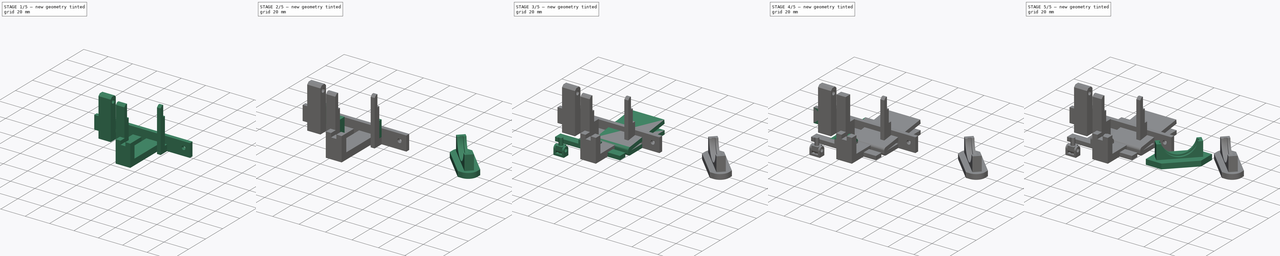
[diagram: build sequence overview — one tinted view per stage of 5, left to right]
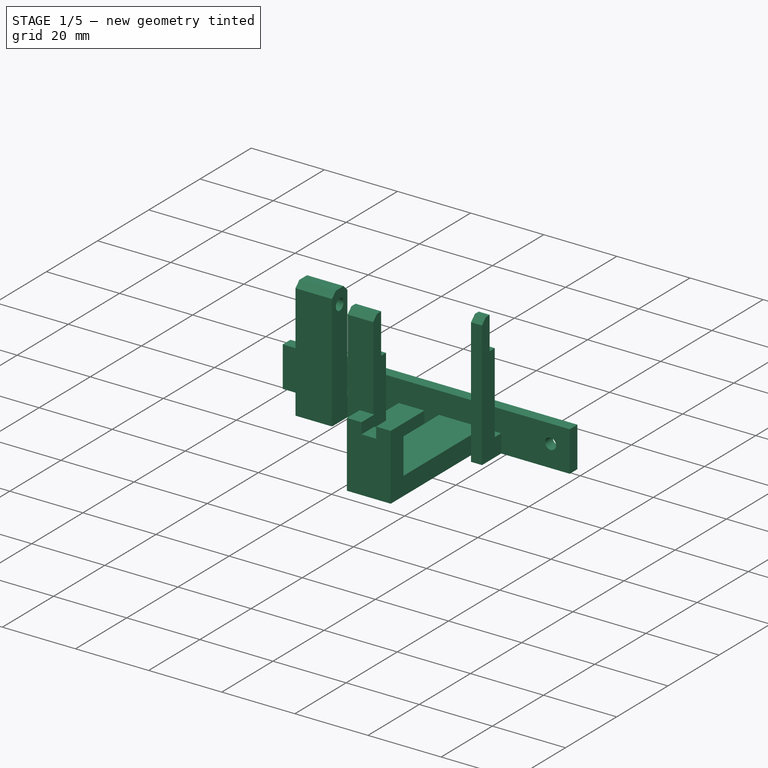
[diagram: stage 1 of 5 — iso view after this stage's code; geometry added in this stage tinted green]
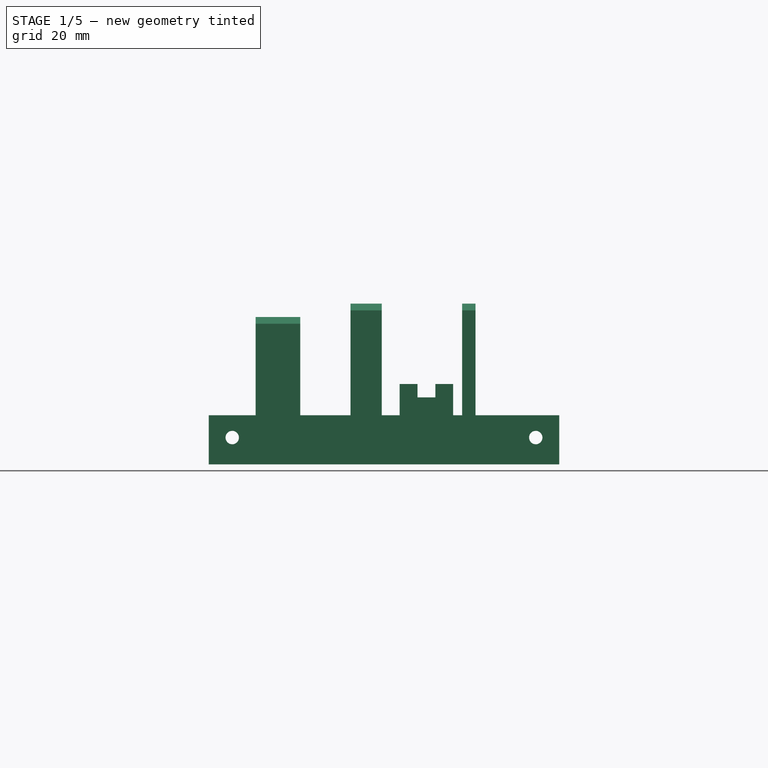
[diagram: stage 1 of 5 — front view after this stage's code; geometry added in this stage tinted green]
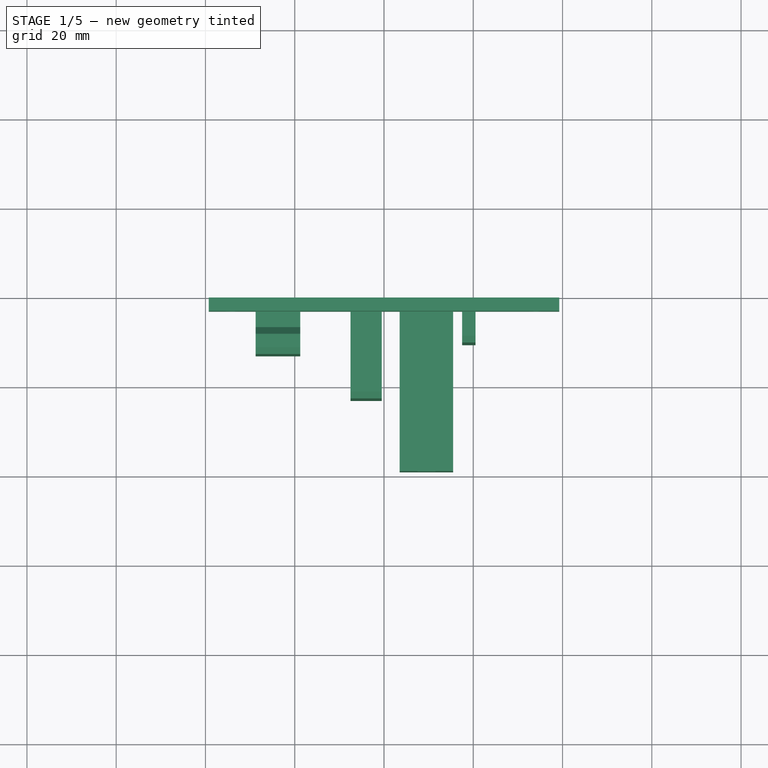
[diagram: stage 1 of 5 — top view after this stage's code; geometry added in this stage tinted green]
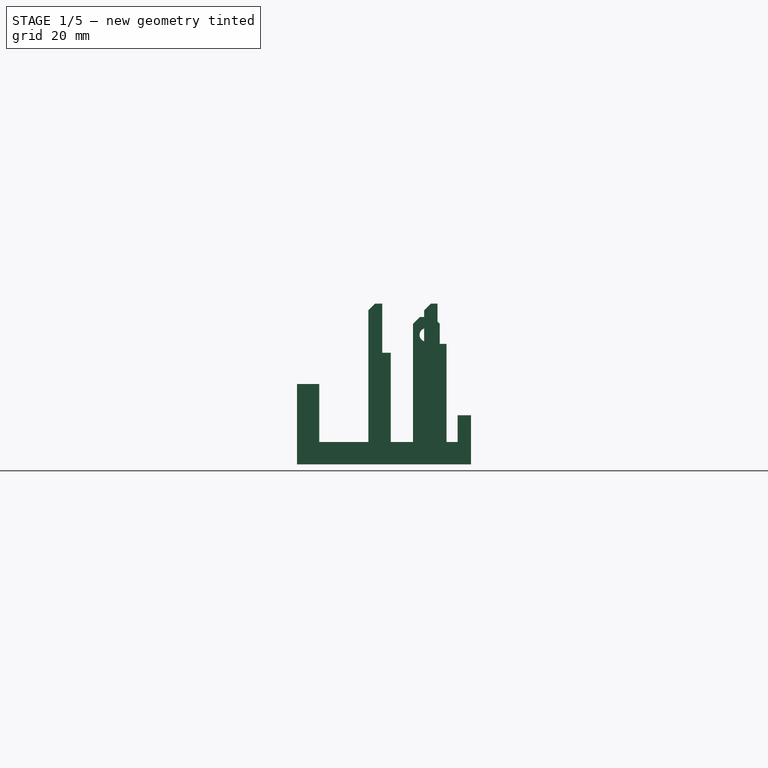
[diagram: stage 1 of 5 — right view after this stage's code; geometry added in this stage tinted green]
FCSTD DOCUMENT  (FreeCAD 0.20R29177 (Git))
Label: dmd-dichroic
License: All rights reserved
LicenseURL: http://en.wikipedia.org/wiki/All_rights_reserved
objects: Sketcher::SketchObject×47, PartDesign::Pad×30, PartDesign::Pocket×17, Part::Cylinder×7, PartDesign::Body×7, Part::Cut×6, PartDesign::Chamfer×4, Part::Box×3, PartDesign::Fillet×2, Part::MultiFuse×1, Part::Fuse×1, Part::Fillet×1, Part::Mirroring×1
note: 180 computed .brp shape members not serialized (recipe doc carries the construction recipe); baked Part::Feature solids carry a one-line shape summary decoded from their .brp

FEATURE [Sketcher::SketchObject] Sketch032  label="MainBase003"
  FullyConstrained = true
  MapMode = 5
  Placement = pos=(0,0,0) rot=(1,0,0;1.5708rad)
  Support = -> [XZ_Plane006]
  expr: Constraints[10] = 78.5 / 2
  sketch-geometry (4):
    g0: LineSegment StartX=-39.25 StartY=11 StartZ=0 EndX=39.25 EndY=11 EndZ=0
    g1: LineSegment StartX=39.25 StartY=11 StartZ=0 EndX=39.25 EndY=0 EndZ=0
    g2: LineSegment StartX=39.25 StartY=0 StartZ=0 EndX=-39.25 EndY=0 EndZ=0
    g3: LineSegment StartX=-39.25 StartY=0 StartZ=0 EndX=-39.25 EndY=11 EndZ=0
  constraints (12):
    c: Coincident(g0,g1)
    c: Coincident(g1,g2)
    c: Coincident(g2,g3)
    c: Coincident(g3,g0)
    c: Horizontal(g0)
    c: Horizontal(g2)
    c: Vertical(g1)
    c: Vertical(g3)
    c: PointOnObject(g1,g-1)
    c: DistanceX(g2,g2) = 78.5
    c: DistanceX(g-1,g0) = 39.25
    c: DistanceY(g3,g3) = 11
FEATURE [PartDesign::Pad] Pad020  label="MainBase002"
  Direction = (0,-1,-2e-16)
  Length = 3
  Length2 = 10
  Placement = pos=(0,0,0) rot=(1,0,0;1.5708rad)
  Profile = -> Sketch032
  ReferenceAxis = -> Sketch032 [N_Axis]
  Type = 0
FEATURE [Sketcher::SketchObject] Sketch033  label="Holes003"
  FullyConstrained = true
  MapMode = 5
  Placement = pos=(0,-3,0) rot=(1,0,0;1.5708rad)
  Support = -> [Pad020]
  expr: Constraints[5] = 68 / 2
  sketch-geometry (2):
    g0: Circle CenterX=-34 CenterY=6 CenterZ=0 NormalX=0 NormalY=0 NormalZ=1 AngleXU=0 Radius=1.5
    g1: Circle CenterX=34 CenterY=6 CenterZ=0 NormalX=0 NormalY=0 NormalZ=1 AngleXU=0 Radius=1.5
  constraints (6):
    c: Equal(g1,g0)
    c: Diameter(g1) = 3
    c: DistanceY(g-1,g0) = 6
    c: DistanceY(g-1,g1) = 6
    c: DistanceX(g0,g1) = 68
    c: DistanceX(g0,g-1) = 34
FEATURE [PartDesign::Pocket] Pocket012  label="Holes002"
  BaseFeature = -> Pad020
  Direction = (0,1,2e-16)
  Length = 5
  Length2 = 5
  Placement = pos=(0,0,0) rot=(1,0,0;1.5708rad)
  Profile = -> Sketch033
  ReferenceAxis = -> Sketch033 [N_Axis]
  Type = 1
FEATURE [Sketcher::SketchObject] Sketch034  label="Extension003"
  FullyConstrained = true
  MapMode = 5
  Placement = pos=(0,-3,0) rot=(1,0,0;1.5708rad)
  Support = -> [Pocket012]
  expr: Constraints[11] = 50 - 79 / 2 - 7
  sketch-geometry (4):
    g0: LineSegment StartX=3.5 StartY=5 StartZ=0 EndX=15.5 EndY=5 EndZ=0
    g1: LineSegment StartX=15.5 StartY=5 StartZ=0 EndX=15.5 EndY=0 EndZ=0
    g2: LineSegment StartX=15.5 StartY=0 StartZ=0 EndX=3.5 EndY=0 EndZ=0
    g3: LineSegment StartX=3.5 StartY=0 StartZ=0 EndX=3.5 EndY=5 EndZ=0
  constraints (12):
    c: Coincident(g0,g1)
    c: Coincident(g1,g2)
    c: Coincident(g3,g0)
    c: Horizontal(g0)
    c: Horizontal(g2)
    c: Vertical(g1)
    c: Vertical(g3)
    c: PointOnObject(g1,g-1)
    c: DistanceX(g0,g0) = 12
    c: DistanceY(g1,g1) = 5
    c: Coincident(g2,g3)
    c: DistanceX(g-1,g2) = 3.5
FEATURE [PartDesign::Pad] Pad021  label="Extension002"
  BaseFeature = -> Pocket012
  Direction = (0,-1,2e-16)
  Length = 36
  Length2 = 10
  Placement = pos=(0,0,0) rot=(1,0,0;1.5708rad)
  Profile = -> Sketch034
  ReferenceAxis = -> Sketch034 [N_Axis]
  Type = 0
FEATURE [Sketcher::SketchObject] Sketch035  label="ExtensionUp003"
  ExternalGeometry = -> [Pad021]
  FullyConstrained = true
  MapMode = 5
  Placement = pos=(0,1.7e-15,5) rot=(0,0,1;3.14159rad)
  Support = -> [Pad021]
  sketch-geometry (4):
    g0: LineSegment StartX=-15.5 StartY=39 StartZ=0 EndX=-3.5 EndY=39 EndZ=0
    g1: LineSegment StartX=-3.5 StartY=39 StartZ=0 EndX=-3.5 EndY=34 EndZ=0
    g2: LineSegment StartX=-3.5 StartY=34 StartZ=0 EndX=-15.5 EndY=34 EndZ=0
    g3: LineSegment StartX=-15.5 StartY=34 StartZ=0 EndX=-15.5 EndY=39 EndZ=0
  constraints (12):
    c: Coincident(g0,g1)
    c: Coincident(g1,g2)
    c: Coincident(g2,g3)
    c: Coincident(g3,g0)
    c: Horizontal(g0)
    c: Horizontal(g2)
    c: Vertical(g1)
    c: Vertical(g3)
    c: Coincident(g0,g-3)
    c: DistanceX(g-3,g-3) = 12
    c: DistanceX(g0,g0) = 12
    c: DistanceY(g1,g1) = 5
FEATURE [PartDesign::Pad] Pad022  label="ExtensionUp002"
  BaseFeature = -> Pad021
  Direction = (0,3e-16,1)
  Length = 13
  Length2 = 10
  Placement = pos=(0,0,0) rot=(1,0,0;1.5708rad)
  Profile = -> Sketch035
  ReferenceAxis = -> Sketch035 [N_Axis]
  Type = 0
FEATURE [Sketcher::SketchObject] Sketch036  label="Fixer003"
  ExternalGeometry = -> [Pad022]
  FullyConstrained = true
  MapMode = 5
  Placement = pos=(0,1.05e-14,18) rot=(0,0,1;3.14159rad)
  Support = -> [Pad022]
  sketch-geometry (4):
    g0: LineSegment StartX=-11.5 StartY=39 StartZ=0 EndX=-7.5 EndY=39 EndZ=0
    g1: LineSegment StartX=-7.5 StartY=39 StartZ=0 EndX=-7.5 EndY=34 EndZ=0
    g2: LineSegment StartX=-7.5 StartY=34 StartZ=0 EndX=-11.5 EndY=34 EndZ=0
    g3: LineSegment StartX=-11.5 StartY=34 StartZ=0 EndX=-11.5 EndY=39 EndZ=0
  constraints (13):
    c: Coincident(g0,g1)
    c: Coincident(g1,g2)
    c: Coincident(g2,g3)
    c: Coincident(g3,g0)
    c: Horizontal(g0)
    c: Horizontal(g2)
    c: Vertical(g1)
    c: Vertical(g3)
    c: PointOnObject(g0,g-3)
    c: DistanceX(g-3,g-3) = 12
    c: DistanceX(g0,g0) = 4
    c: DistanceX(g-3,g0) = 4
    c: DistanceY(g1,g1) = 5
FEATURE [PartDesign::Pocket] Pocket013  label="Fixer002"
  BaseFeature = -> Pad022
  Direction = (0,-5e-16,-1)
  Length = 3
  Length2 = 5
  Placement = pos=(0,0,0) rot=(1,0,0;1.5708rad)
  Profile = -> Sketch036
  ReferenceAxis = -> Sketch036 [N_Axis]
  Type = 0
FEATURE [Sketcher::SketchObject] Sketch037  label="DMDExt005"
  FullyConstrained = true
  MapMode = 5
  Placement = pos=(0,-3,0) rot=(1,0,0;1.5708rad)
  Support = -> [Pocket013]
  sketch-geometry (4):
    g0: LineSegment StartX=-0.5 StartY=0 StartZ=0 EndX=-7.5 EndY=0 EndZ=0
    g1: LineSegment StartX=-7.5 StartY=0 StartZ=0 EndX=-7.5 EndY=5 EndZ=0
    g2: LineSegment StartX=-7.5 StartY=5 StartZ=0 EndX=-0.5 EndY=5 EndZ=0
    g3: LineSegment StartX=-0.5 StartY=5 StartZ=0 EndX=-0.5 EndY=0 EndZ=0
  constraints (12):
    c: Coincident(g0,g1)
    c: Coincident(g1,g2)
    c: Coincident(g2,g3)
    c: Coincident(g3,g0)
    c: Horizontal(g0)
    c: Horizontal(g2)
    c: Vertical(g1)
    c: Vertical(g3)
    c: PointOnObject(g0,g-1)
    c: DistanceX(g0,g-1) = 0.5
    c: DistanceY(g3,g3) = 5
    c: DistanceX(g2,g2) = 7
FEATURE [PartDesign::Pad] Pad023  label="DMDExt003"
  BaseFeature = -> Pocket013
  Direction = (0,-1,-2e-16)
  Length = 20
  Length2 = 10
  Placement = pos=(0,0,0) rot=(1,0,0;1.5708rad)
  Profile = -> Sketch037
  ReferenceAxis = -> Sketch037 [N_Axis]
  Type = 0
FEATURE [Sketcher::SketchObject] Sketch038  label="DMDExtUp005"
  ExternalGeometry = -> [Pad023]
  FullyConstrained = true
  MapMode = 5
  Placement = pos=(0,-5e-16,5) rot=(0,0,1;3.14159rad)
  Support = -> [Pad023]
  sketch-geometry (4):
    g0: LineSegment StartX=7.5 StartY=23 StartZ=0 EndX=0.5 EndY=23 EndZ=0
    g1: LineSegment StartX=0.5 StartY=23 StartZ=0 EndX=0.5 EndY=18 EndZ=0
    g2: LineSegment StartX=0.5 StartY=18 StartZ=0 EndX=7.5 EndY=18 EndZ=0
    g3: LineSegment StartX=7.5 StartY=18 StartZ=0 EndX=7.5 EndY=23 EndZ=0
  constraints (11):
    c: Coincident(g0,g1)
    c: Coincident(g1,g2)
    c: Coincident(g2,g3)
    c: Coincident(g3,g0)
    c: Horizontal(g0)
    c: Horizontal(g2)
    c: Vertical(g1)
    c: Vertical(g3)
    c: Coincident(g0,g-3)
    c: DistanceY(g3,g3) = 5
    c: DistanceX(g0,g0) = 7
FEATURE [PartDesign::Pad] Pad024  label="DMDExtUp003"
  BaseFeature = -> Pad023
  Direction = (0,-1e-16,1)
  Length = 31
  Length2 = 10
  Placement = pos=(0,0,0) rot=(1,0,0;1.5708rad)
  Profile = -> Sketch038
  ReferenceAxis = -> Sketch038 [N_Axis]
  Type = 0
FEATURE [Sketcher::SketchObject] Sketch039  label="DMDExt006"
  ExternalGeometry = -> [Pad024]
  FullyConstrained = true
  MapMode = 5
  Placement = pos=(0,-3,0) rot=(1,0,0;1.5708rad)
  Support = -> [Pad024]
  sketch-geometry (4):
    g0: LineSegment StartX=17.5 StartY=0 StartZ=0 EndX=20.5 EndY=0 EndZ=0
    g1: LineSegment StartX=20.5 StartY=0 StartZ=0 EndX=20.5 EndY=5 EndZ=0
    g2: LineSegment StartX=20.5 StartY=5 StartZ=0 EndX=17.5 EndY=5 EndZ=0
    g3: LineSegment StartX=17.5 StartY=5 StartZ=0 EndX=17.5 EndY=0 EndZ=0
  constraints (12):
    c: Coincident(g0,g1)
    c: Coincident(g1,g2)
    c: Coincident(g2,g3)
    c: Coincident(g3,g0)
    c: Horizontal(g0)
    c: Horizontal(g2)
    c: Vertical(g1)
    c: Vertical(g3)
    c: PointOnObject(g0,g-1)
    c: DistanceX(g-1,g0) = 17.5
    c: DistanceX(g2,g2) = 3
    c: DistanceY(g1,g1) = 5
FEATURE [PartDesign::Pad] Pad025  label="DMDExt004"
  BaseFeature = -> Pad024
  Direction = (0,-1,2e-16)
  Length = 7.5
  Length2 = 10
  Placement = pos=(0,0,0) rot=(1,0,0;1.5708rad)
  Profile = -> Sketch039
  ReferenceAxis = -> Sketch039 [N_Axis]
  Type = 0
FEATURE [Sketcher::SketchObject] Sketch040  label="DMDExtUp006"
  ExternalGeometry = -> [Pad025]
  FullyConstrained = true
  MapMode = 5
  Placement = pos=(0,1.7e-15,5) rot=(0,0,1;3.14159rad)
  Support = -> [Pad025]
  sketch-geometry (4):
    g0: LineSegment StartX=-20.5 StartY=10.5 StartZ=0 EndX=-17.5 EndY=10.5 EndZ=0
    g1: LineSegment StartX=-17.5 StartY=10.5 StartZ=0 EndX=-17.5 EndY=5.5 EndZ=0
    g2: LineSegment StartX=-17.5 StartY=5.5 StartZ=0 EndX=-20.5 EndY=5.5 EndZ=0
    g3: LineSegment StartX=-20.5 StartY=5.5 StartZ=0 EndX=-20.5 EndY=10.5 EndZ=0
  constraints (11):
    c: Coincident(g0,g1)
    c: Coincident(g1,g2)
    c: Coincident(g2,g3)
    c: Coincident(g3,g0)
    c: Horizontal(g0)
    c: Horizontal(g2)
    c: Vertical(g1)
    c: Vertical(g3)
    c: Coincident(g0,g-3)
    c: DistanceY(g1,g1) = 5
    c: DistanceX(g0,g0) = 3
FEATURE [PartDesign::Pad] Pad026  label="DMDExtUp004"
  BaseFeature = -> Pad025
  Direction = (0,3e-16,1)
  Length = 31
  Length2 = 10
  Placement = pos=(0,0,0) rot=(1,0,0;1.5708rad)
  Profile = -> Sketch040
  ReferenceAxis = -> Sketch040 [N_Axis]
  Type = 0
FEATURE [Sketcher::SketchObject] Sketch041  label="FibreExt003"
  FullyConstrained = false
  MapMode = 5
  Placement = pos=(0,-3,0) rot=(1,0,0;1.5708rad)
  Support = -> [Pad026]
  sketch-geometry (4):
    g0: LineSegment StartX=-18.7563 StartY=0 StartZ=0 EndX=-28.7563 EndY=0 EndZ=0
    g1: LineSegment StartX=-28.7563 StartY=0 StartZ=0 EndX=-28.7563 EndY=5 EndZ=0
    g2: LineSegment StartX=-28.7563 StartY=5 StartZ=0 EndX=-18.7563 EndY=5 EndZ=0
    g3: LineSegment StartX=-18.7563 StartY=5 StartZ=0 EndX=-18.7563 EndY=0 EndZ=0
  constraints (11):
    c: Coincident(g0,g1)
    c: Coincident(g1,g2)
    c: Coincident(g2,g3)
    c: Coincident(g3,g0)
    c: Horizontal(g0)
    c: Horizontal(g2)
    c: Vertical(g1)
    c: Vertical(g3)
    c: PointOnObject(g0,g-1)
    c: DistanceY(g3,g3) = 5
    c: DistanceX(g2,g2) = 10
FEATURE [PartDesign::Pad] Pad027  label="FibreExt002"
  BaseFeature = -> Pad026
  Direction = (0,-1,4e-16)
  Length = 10
  Length2 = 10
  Placement = pos=(0,0,0) rot=(1,0,0;1.5708rad)
  Profile = -> Sketch041
  ReferenceAxis = -> Sketch041 [N_Axis]
  Type = 0
FEATURE [Sketcher::SketchObject] Sketch042  label="FibreExtUp003"
  ExternalGeometry = -> [Pad027]
  FullyConstrained = true
  MapMode = 5
  Placement = pos=(0,2.8e-15,5) rot=(0,0,1;3.14159rad)
  Support = -> [Pad027]
  sketch-geometry (4):
    g0: LineSegment StartX=18.7563 StartY=13 StartZ=0 EndX=28.7563 EndY=13 EndZ=0
    g1: LineSegment StartX=28.7563 StartY=13 StartZ=0 EndX=28.7563 EndY=7 EndZ=0
    g2: LineSegment StartX=28.7563 StartY=7 StartZ=0 EndX=18.7563 EndY=7 EndZ=0
    g3: LineSegment StartX=18.7563 StartY=7 StartZ=0 EndX=18.7563 EndY=13 EndZ=0
  constraints (11):
    c: Coincident(g0,g1)
    c: Coincident(g1,g2)
    c: Coincident(g2,g3)
    c: Coincident(g3,g0)
    c: Horizontal(g0)
    c: Horizontal(g2)
    c: Vertical(g1)
    c: Vertical(g3)
    c: Coincident(g0,g-3)
    c: DistanceY(g1,g1) = 6
    c: DistanceX(g0,g0) = 10
FEATURE [PartDesign::Pad] Pad028  label="FibreExtUp002"
  BaseFeature = -> Pad027
  Direction = (0,6e-16,1)
  Length = 28
  Length2 = 10
  Placement = pos=(0,0,0) rot=(1,0,0;1.5708rad)
  Profile = -> Sketch042
  ReferenceAxis = -> Sketch042 [N_Axis]
  Type = 0
FEATURE [Sketcher::SketchObject] Sketch043  label="FibreHole003"
  ExternalGeometry = -> [Pad028]
  FullyConstrained = true
  MapMode = 5
  Placement = pos=(-18.7563,0,0) rot=(0.707107,0,0.707107;3.14159rad)
  Support = -> [Pad028]
  sketch-geometry (1):
    g0: Circle CenterX=29 CenterY=10 CenterZ=0 NormalX=0 NormalY=0 NormalZ=1 AngleXU=0 Radius=1.525
  constraints (4):
    c: Diameter(g0) = 3.05
    c: DistanceY(g-3,g-3) = 6
    c: DistanceX(g0,g-3) = 4
    c: DistanceY(g0,g-3) = 3
FEATURE [PartDesign::Pocket] Pocket014  label="FibreHole002"
  BaseFeature = -> Pad028
  Direction = (-1,0,2e-16)
  Length = 5
  Length2 = 5
  Placement = pos=(0,0,0) rot=(1,0,0;1.5708rad)
  Profile = -> Sketch043
  ReferenceAxis = -> Sketch043 [N_Axis]
  Type = 1
FEATURE [Sketcher::SketchObject] Sketch044  label="DMDStand005"
  ExternalGeometry = -> [Pad024]
  FullyConstrained = true
  MapMode = 5
  Placement = pos=(0,1.5e-15,36) rot=(0,0,1;3.14159rad)
  Support = -> [Pad024]
  sketch-geometry (4):
    g0: LineSegment StartX=7.5 StartY=18 StartZ=0 EndX=0.5 EndY=18 EndZ=0
    g1: LineSegment StartX=0.5 StartY=18 StartZ=0 EndX=0.5 EndY=19.9 EndZ=0
    g2: LineSegment StartX=0.5 StartY=19.9 StartZ=0 EndX=7.5 EndY=19.9 EndZ=0
    g3: LineSegment StartX=7.5 StartY=19.9 StartZ=0 EndX=7.5 EndY=18 EndZ=0
  constraints (11):
    c: Coincident(g0,g1)
    c: Coincident(g1,g2)
    c: Coincident(g2,g3)
    c: Coincident(g3,g0)
    c: Horizontal(g0)
    c: Horizontal(g2)
    c: Vertical(g1)
    c: Vertical(g3)
    c: Coincident(g0,g-3)
    c: DistanceY(g3,g3) = 1.9
    c: DistanceX(g2,g2) = 7
FEATURE [PartDesign::Pocket] Pocket015  label="DMDStand003"
  BaseFeature = -> Pocket014
  Direction = (0,1e-16,-1)
  Length = 11
  Length2 = 5
  Placement = pos=(0,0,0) rot=(1,0,0;1.5708rad)
  Profile = -> Sketch044
  ReferenceAxis = -> Sketch044 [N_Axis]
  Type = 0
FEATURE [Sketcher::SketchObject] Sketch045  label="DMDStand006"
  ExternalGeometry = -> [Pad026]
  FullyConstrained = true
  MapMode = 5
  Placement = pos=(0,2.1e-14,36) rot=(0,0,1;3.14159rad)
  Support = -> [Pad026]
  sketch-geometry (4):
    g0: LineSegment StartX=-17.5 StartY=5.5 StartZ=0 EndX=-20.5 EndY=5.5 EndZ=0
    g1: LineSegment StartX=-20.5 StartY=5.5 StartZ=0 EndX=-20.5 EndY=7.5 EndZ=0
    g2: LineSegment StartX=-20.5 StartY=7.5 StartZ=0 EndX=-17.5 EndY=7.5 EndZ=0
    g3: LineSegment StartX=-17.5 StartY=7.5 StartZ=0 EndX=-17.5 EndY=5.5 EndZ=0
  constraints (11):
    c: Coincident(g0,g1)
    c: Coincident(g1,g2)
    c: Coincident(g2,g3)
    c: Coincident(g3,g0)
    c: Horizontal(g0)
    c: Horizontal(g2)
    c: Vertical(g1)
    c: Vertical(g3)
    c: Coincident(g0,g-3)
    c: DistanceX(g2,g2) = 3
    c: DistanceY(g3,g3) = 2
FEATURE [PartDesign::Pocket] Pocket016  label="DMDStand004"
  BaseFeature = -> Pocket015
  Direction = (0,-5e-16,-1)
  Length = 9
  Length2 = 5
  Placement = pos=(0,0,0) rot=(1,0,0;1.5708rad)
  Profile = -> Sketch045
  ReferenceAxis = -> Sketch045 [N_Axis]
  Type = 0
FEATURE [PartDesign::Chamfer] Chamfer003
  Angle = 45
  Base = -> Pocket016 [Edge140,Edge121,Edge125,Edge139]
  BaseFeature = -> Pocket016
  ChamferType = 0
  FlipDirection = false
  Placement = pos=(0,0,0) rot=(1,0,0;1.5708rad)
  Size = 1.5
  Size2 = 1
  SupportTransform = false
  UseAllEdges = false
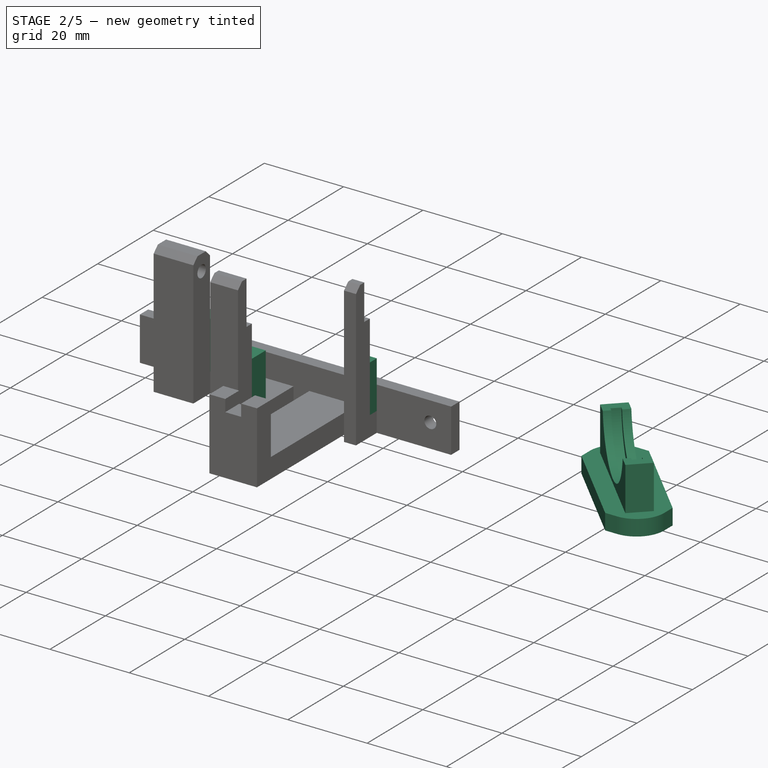
[diagram: stage 2 of 5 — iso view after this stage's code; geometry added in this stage tinted green]
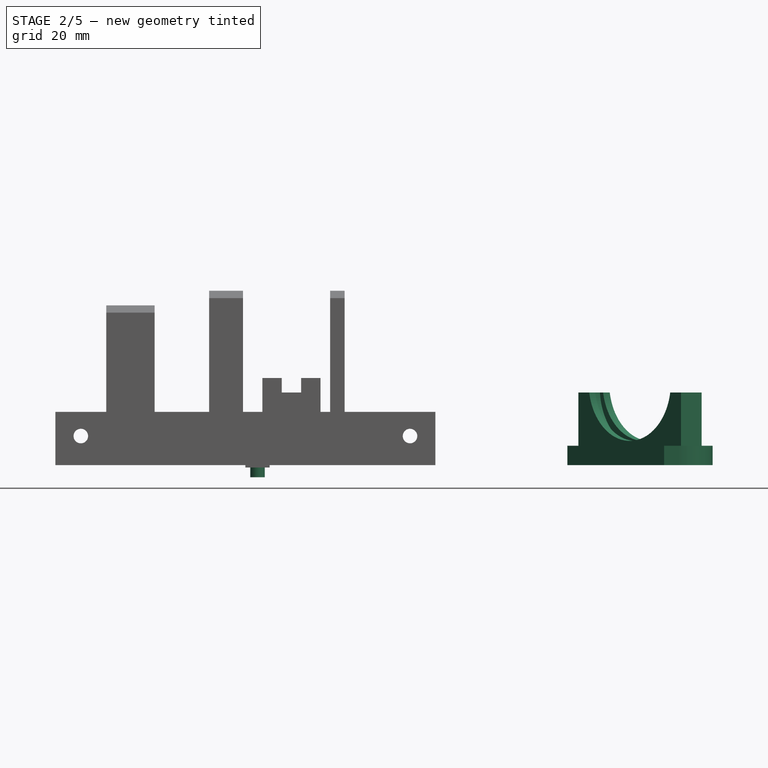
[diagram: stage 2 of 5 — front view after this stage's code; geometry added in this stage tinted green]
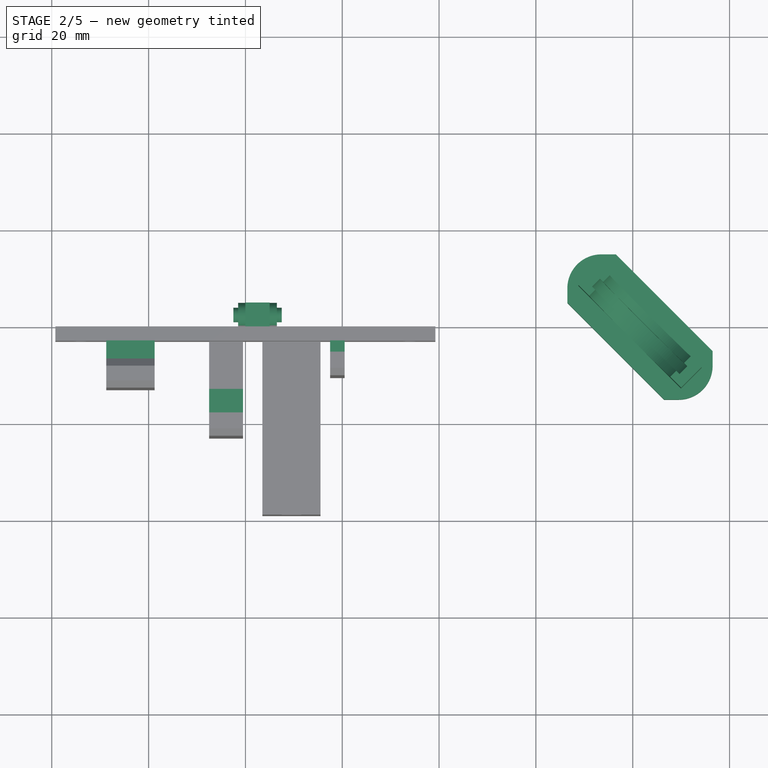
[diagram: stage 2 of 5 — top view after this stage's code; geometry added in this stage tinted green]
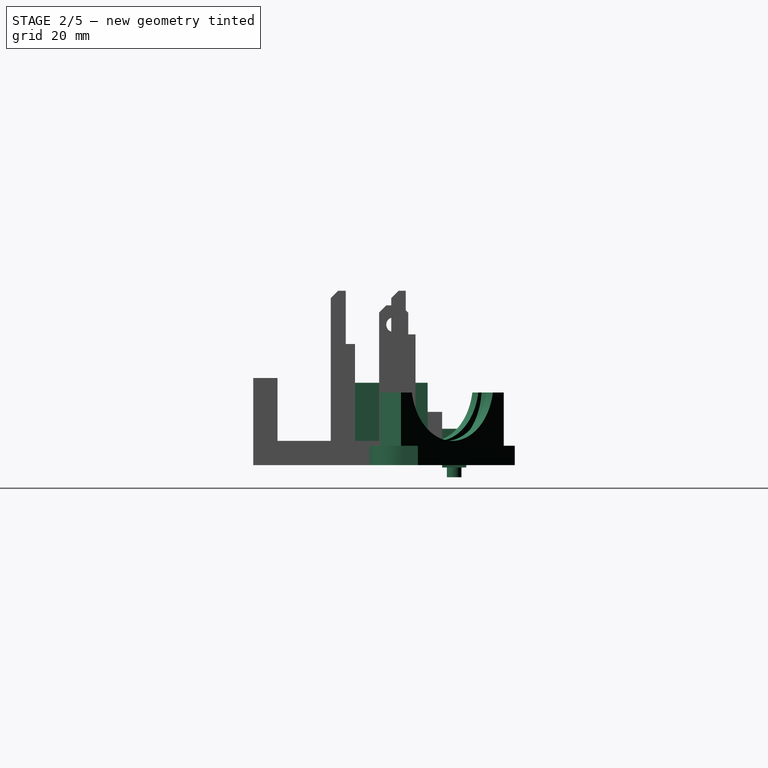
[diagram: stage 2 of 5 — right view after this stage's code; geometry added in this stage tinted green]
FEATURE [Part::Cylinder] Cylinder003  label="AngRotTmp02"
  Angle = 360
  AttacherType = Attacher::AttachEngine3D
  FirstAngle = 0
  Height = 8
  Placement = pos=(-1.5,2.5,2.5) rot=(0,1,0;1.5708rad)
  Radius = 2.5
  SecondAngle = 0
FEATURE [Part::Cylinder] Cylinder004
  Angle = 360
  AttacherType = Attacher::AttachEngine3D
  FirstAngle = 0
  Height = 10
  Placement = pos=(-2.5,2.5,2.5) rot=(0,1,0;1.5708rad)
  Radius = 1.5
  SecondAngle = 0
FEATURE [Part::Box] Box002  label="AngRotHole01"
  AttacherType = Attacher::AttachEngine3D
  Height = 8
  Length = 5
  Placement = pos=(0,0,-0.5) rot=(0,0,1;0rad)
  Width = 5
FEATURE [Part::Cylinder] Cylinder005  label="AngRotHole02"
  Angle = 360
  AttacherType = Attacher::AttachEngine3D
  FirstAngle = 0
  Height = 3
  Placement = pos=(2.5,2.5,-2.5) rot=(0,0,1;0rad)
  Radius = 1.5
  SecondAngle = 0
FEATURE [Part::Cylinder] Cylinder006
  Angle = 360
  AttacherType = Attacher::AttachEngine3D
  FirstAngle = 0
  Height = 2.3
  Placement = pos=(-0.75,0.75,16) rot=(0.707107,0.707107,0;1.5708rad)
  Radius = 12.8
  SecondAngle = 0
FEATURE [Sketcher::SketchObject] Sketch028  label="Dichroic-Holder-Main003"
  FullyConstrained = true
  MapMode = 5
  Support = -> [XY_Plane005]
  sketch-geometry (4):
    g0: LineSegment StartX=-15 StartY=15 StartZ=0 EndX=15 EndY=15 EndZ=0
    g1: LineSegment StartX=15 StartY=15 StartZ=0 EndX=15 EndY=-15 EndZ=0
    g2: LineSegment StartX=15 StartY=-15 StartZ=0 EndX=-15 EndY=-15 EndZ=0
    g3: LineSegment StartX=-15 StartY=-15 StartZ=0 EndX=-15 EndY=15 EndZ=0
  constraints (11):
    c: Coincident(g0,g1)
    c: Coincident(g1,g2)
    c: Coincident(g2,g3)
    c: Coincident(g3,g0)
    c: Horizontal(g0)
    c: Horizontal(g2)
    c: Vertical(g1)
    c: Vertical(g3)
    c: Symmetric(g1,g0,g-1)
    c: DistanceX(g0,g0) = 30
    c: DistanceY(g1,g1) = 30
FEATURE [PartDesign::Pad] Pad018  label="Dichroic-Holder-Main002"
  Direction = (0,0,1)
  Length = 4
  Length2 = 10
  Profile = -> Sketch028
  ReferenceAxis = -> Sketch028 [N_Axis]
  Type = 0
FEATURE [Sketcher::SketchObject] Sketch029  label="Dichroic-Holder-Ext003"
  FullyConstrained = true
  MapMode = 5
  Placement = pos=(0,0,4) rot=(0,0,1;0rad)
  Support = -> [Pad018]
  sketch-geometry (4):
    g0: LineSegment StartX=-12.7279 StartY=-8.48528 StartZ=0 EndX=-8.48528 EndY=-12.7279 EndZ=0
    g1: LineSegment StartX=-8.48528 StartY=-12.7279 StartZ=0 EndX=12.7279 EndY=8.48528 EndZ=0
    g2: LineSegment StartX=12.7279 StartY=8.48528 StartZ=0 EndX=8.48528 EndY=12.7279 EndZ=0
    g3: LineSegment StartX=8.48528 StartY=12.7279 StartZ=0 EndX=-12.7279 EndY=-8.48528 EndZ=0
  constraints (11):
    c: Coincident(g0,g1)
    c: Coincident(g1,g2)
    c: Coincident(g2,g3)
    c: Coincident(g3,g0)
    c: Parallel(g3,g1)
    c: Parallel(g2,g0)
    c: Angle(g1) = 0.785398
    c: Angle(g2,g1) = 1.5708
    c: Symmetric(g2,g0,g-1)
    c: Distance(g2) = 6
    c: Distance(g1) = 30
FEATURE [PartDesign::Pad] Pad019  label="Dichroic-Holder-Ext002"
  BaseFeature = -> Pad018
  Direction = (0,0,1)
  Length = 11
  Length2 = 10
  Profile = -> Sketch029
  ReferenceAxis = -> Sketch029 [N_Axis]
  Type = 0
FEATURE [Sketcher::SketchObject] Sketch030  label="Dichroic-Hole003"
  FullyConstrained = true
  MapMode = 5
  Placement = pos=(2.12132,-2.12132,0) rot=(0.862856,0.357407,0.357407;1.71777rad)
  Support = -> [Pad019]
  sketch-geometry (2):
    g0: ArcOfCircle CenterX=0 CenterY=17 CenterZ=0 NormalX=0 NormalY=0 NormalZ=1 AngleXU=0 Radius=12 StartAngle=3.14159 EndAngle=6.28319
    g1: LineSegment StartX=-12 StartY=17 StartZ=0 EndX=12 EndY=17 EndZ=0
  constraints (7):
    c: PointOnObject(g0,g-2)
    c: Radius(g0) = 12
    c: Angle(g0) = 3.14159
    c: Coincident(g1,g0)
    c: Coincident(g1,g0)
    c: Horizontal(g1)
    c: DistanceY(g-1,g0) = 17
FEATURE [PartDesign::Pocket] Pocket010  label="Dichroic-Hole002"
  BaseFeature = -> Pad019
  Direction = (-0.707107,0.707107,0)
  Length = 5
  Length2 = 5
  Profile = -> Sketch030
  ReferenceAxis = -> Sketch030 [N_Axis]
  Type = 1
FEATURE [Sketcher::SketchObject] Sketch031  label="Dichroic-Hole-Fixer003"
  FullyConstrained = true
  MapMode = 5
  Placement = pos=(0,0,0) rot=(1,0,0;3.14159rad)
  Support = -> [Pocket010]
  sketch-geometry (8):
    g0: LineSegment StartX=-6 StartY=2.5 StartZ=0 EndX=-2 EndY=2.5 EndZ=0
    g1: LineSegment StartX=-2 StartY=2.5 StartZ=0 EndX=-2 EndY=-2.5 EndZ=0
    g2: LineSegment StartX=-2 StartY=-2.5 StartZ=0 EndX=-6 EndY=-2.5 EndZ=0
    g3: LineSegment StartX=-6 StartY=-2.5 StartZ=0 EndX=-6 EndY=2.5 EndZ=0
    g4: LineSegment StartX=2 StartY=2.5 StartZ=0 EndX=6 EndY=2.5 EndZ=0
    g5: LineSegment StartX=6 StartY=2.5 StartZ=0 EndX=6 EndY=-2.5 EndZ=0
    g6: LineSegment StartX=6 StartY=-2.5 StartZ=0 EndX=2 EndY=-2.5 EndZ=0
    g7: LineSegment StartX=2 StartY=-2.5 StartZ=0 EndX=2 EndY=2.5 EndZ=0
  constraints (23):
    c: Coincident(g0,g1)
    c: Coincident(g1,g2)
    c: Coincident(g2,g3)
    c: Coincident(g3,g0)
    c: Horizontal(g0)
    c: Horizontal(g2)
    c: Vertical(g1)
    c: Vertical(g3)
    c: Coincident(g4,g5)
    c: Coincident(g5,g6)
    c: Coincident(g6,g7)
    c: Coincident(g7,g4)
    c: Horizontal(g4)
    c: Horizontal(g6)
    c: Vertical(g5)
    c: Vertical(g7)
    c: DistanceX(g0,g0) = 4
    c: DistanceX(g4,g4) = 4
    c: DistanceX(g0,g4) = 4
    c: Symmetric(g0,g6,g-1)
    c: DistanceY(g5,g5) = 5
    c: Equal(g1,g5)
    c: DistanceY(g1,g6) = 0
FEATURE [PartDesign::Pocket] Pocket011  label="Dichroic-Hole-Fixer002"
  BaseFeature = -> Pocket010
  Direction = (0,0,1)
  Length = 2
  Length2 = 5
  Profile = -> Sketch031
  ReferenceAxis = -> Sketch031 [N_Axis]
  Type = 0
FEATURE [PartDesign::Chamfer] Chamfer002
  Angle = 45
  Base = -> Pocket011 [Edge8,Edge1]
  BaseFeature = -> Pocket011
  ChamferType = 0
  FlipDirection = false
  Size = 20
  Size2 = 1
  SupportTransform = false
  UseAllEdges = false
FEATURE [PartDesign::Fillet] Fillet002
  Base = -> Chamfer002 [Edge29,Edge3]
  BaseFeature = -> Chamfer002
  Radius = 7
  SupportTransform = false
  UseAllEdges = false
FEATURE [PartDesign::Body] Body005  label="Dichroic-Holder-Temp001"
  Group = -> [Sketch028,Pad018,Sketch029,Pad019,Sketch030,Pocket010,Sketch031,Pocket011,Chamfer002,Fillet002]
  Origin = -> Origin005
  Tip = -> Fillet002
FEATURE [Part::Cut] Cut005  label="Dichroic-Holder02"
  Base = -> Body005
  Tool = -> Cylinder006
FEATURE [Part::Mirroring] Part__Mirroring  label="Dichroic-Holder02 (Mirror #1)"
  Base = (0,0,0)
  Normal = (1,0,0)
  Placement = pos=(81.5,0,0) rot=(0,0,1;0rad)
  Source = -> Cut005
FEATURE [Sketcher::SketchObject] Sketch046
  ExternalGeometry = -> [Chamfer003]
  FullyConstrained = true
  MapMode = 5
  Placement = pos=(0,2.8e-15,5) rot=(0,0,1;3.14159rad)
  Support = -> [Chamfer003]
  sketch-geometry (12):
    g0: LineSegment StartX=18.7563 StartY=7 StartZ=0 EndX=28.7563 EndY=7 EndZ=0
    g1: LineSegment StartX=28.7563 StartY=7 StartZ=0 EndX=28.7563 EndY=3 EndZ=0
    g2: LineSegment StartX=28.7563 StartY=3 StartZ=0 EndX=18.7563 EndY=3 EndZ=0
    g3: LineSegment StartX=18.7563 StartY=3 StartZ=0 EndX=18.7563 EndY=7 EndZ=0
    g4: LineSegment StartX=0.5 StartY=18 StartZ=0 EndX=7.5 EndY=18 EndZ=0
    g5: LineSegment StartX=7.5 StartY=18 StartZ=0 EndX=7.5 EndY=13 EndZ=0
    g6: LineSegment StartX=7.5 StartY=13 StartZ=0 EndX=0.5 EndY=13 EndZ=0
    g7: LineSegment StartX=0.5 StartY=13 StartZ=0 EndX=0.5 EndY=18 EndZ=0
    g8: LineSegment StartX=-20.5 StartY=5.5 StartZ=0 EndX=-17.5 EndY=5.5 EndZ=0
    g9: LineSegment StartX=-17.5 StartY=5.5 StartZ=0 EndX=-17.5 EndY=3 EndZ=0
    g10: LineSegment StartX=-17.5 StartY=3 StartZ=0 EndX=-20.5 EndY=3 EndZ=0
    g11: LineSegment StartX=-20.5 StartY=3 StartZ=0 EndX=-20.5 EndY=5.5 EndZ=0
  constraints (35):
    c: Coincident(g0,g1)
    c: Coincident(g1,g2)
    c: Coincident(g2,g3)
    c: Coincident(g3,g0)
    c: Horizontal(g0)
    c: Horizontal(g2)
    c: Vertical(g1)
    c: Vertical(g3)
    c: Coincident(g4,g5)
    c: Coincident(g5,g6)
    c: Coincident(g6,g7)
    c: Coincident(g7,g4)
    c: Horizontal(g4)
    c: Horizontal(g6)
    c: Vertical(g5)
    c: Vertical(g7)
    c: Coincident(g8,g9)
    c: Coincident(g9,g10)
    c: Coincident(g10,g11)
    c: Coincident(g11,g8)
    c: Horizontal(g8)
    c: Horizontal(g10)
    c: Vertical(g9)
    c: Vertical(g11)
    c: PointOnObject(g1,g-3)
    c: PointOnObject(g10,g-3)
    c: DistanceX(g8,g8) = 3
    c: PointOnObject(g8,g-4)
    c: DistanceX(g4,g4) = 7
    c: PointOnObject(g0,g-6)
    c: DistanceX(g0,g0) = 10
    c: DistanceY(g3,g3) = 4
    c: DistanceY(g7,g7) = 5
    c: DistanceY(g11,g11) = 2.5
    c: Coincident(g4,g-5)
FEATURE [PartDesign::Pad] Pad029
  BaseFeature = -> Chamfer003
  Direction = (0,6e-16,1)
  Length = 12
  Length2 = 10
  Placement = pos=(0,0,0) rot=(1,0,0;1.5708rad)
  Profile = -> Sketch046
  ReferenceAxis = -> Sketch046 [N_Axis]
  Type = 0
FEATURE [PartDesign::Body] Body006  label="DichroicHolder001"
  Group = -> [Sketch032,Pad020,Sketch033,Pocket012,Sketch034,Pad021,Sketch035,Pad022,Sketch036,Pocket013,Sketch037,Pad023,Sketch038,Pad024,Sketch039,Pad025,Sketch040,Pad026,Sketch041,Pad027,Sketch042,Pad028,Sketch043,Pocket014,Sketch044,Pocket015,Sketch045,Pocket016,Chamfer003,Sketch046,Pad029]
  Origin = -> Origin006
  Placement = pos=(0,44.5,0) rot=(0,0,1;0rad)
  Tip = -> Pad029
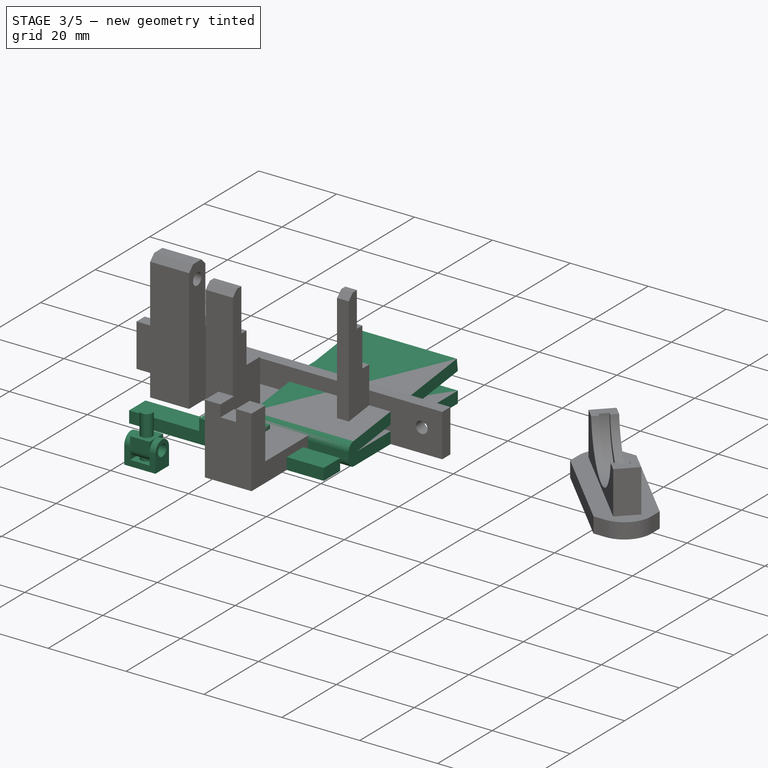
[diagram: stage 3 of 5 — iso view after this stage's code; geometry added in this stage tinted green]
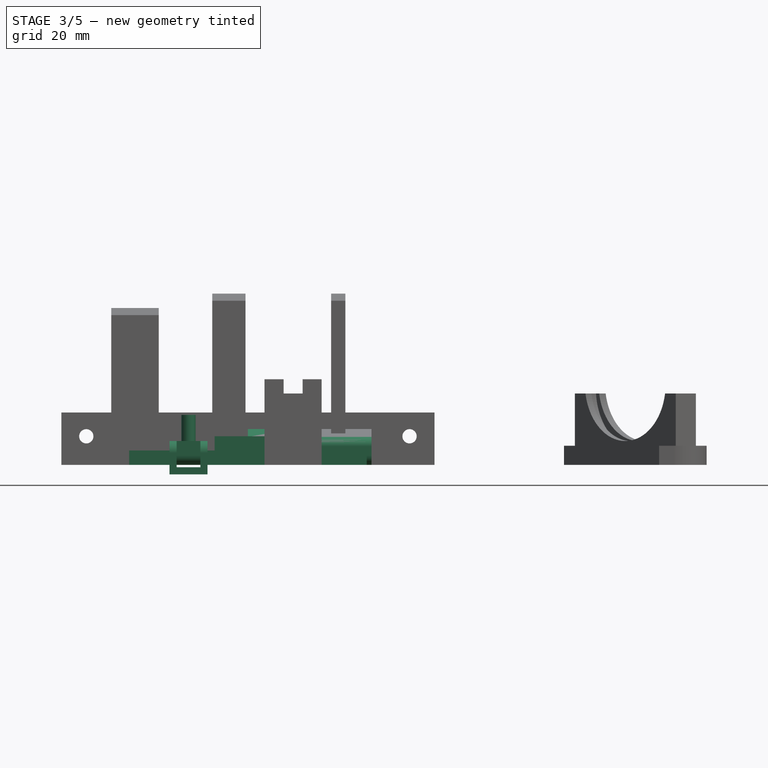
[diagram: stage 3 of 5 — front view after this stage's code; geometry added in this stage tinted green]
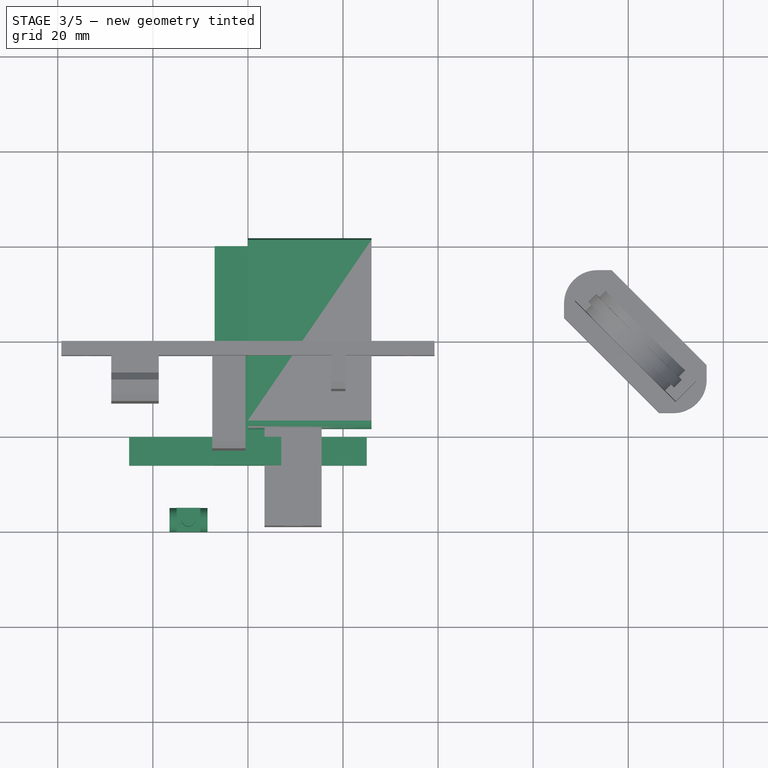
[diagram: stage 3 of 5 — top view after this stage's code; geometry added in this stage tinted green]
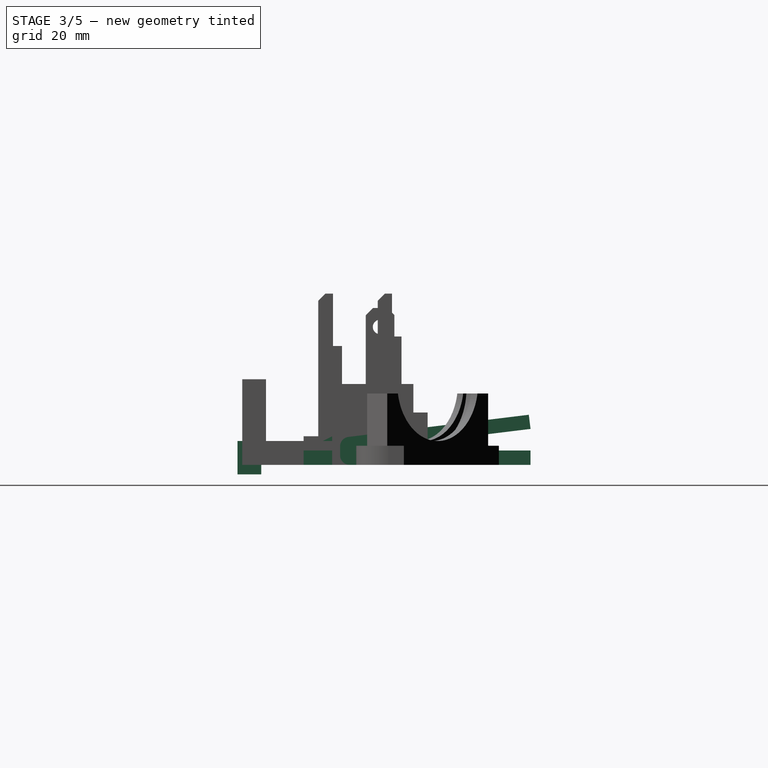
[diagram: stage 3 of 5 — right view after this stage's code; geometry added in this stage tinted green]
FEATURE [PartDesign::Body] Body002  label="RotationSupport"
  Group = -> [Sketch018,Pad011,Sketch019,Pad012,Sketch020,Pad013,Sketch021,Pocket007]
  Origin = -> Origin002
  Placement = pos=(8.11,-91,25.5) rot=(0,0.707107,0.707107;3.14159rad)
  Tip = -> Pocket007
FEATURE [Sketcher::SketchObject] Sketch022
  FullyConstrained = false
  MapMode = 5
  Support = -> [XY_Plane003]
  expr: Constraints[17] = (50 - 14) / 2
  sketch-geometry (8):
    g0: LineSegment StartX=-7 StartY=20.0806 StartZ=0 EndX=7 EndY=20.0806 EndZ=0
    g1: LineSegment StartX=7 StartY=20.0806 StartZ=0 EndX=7 EndY=-20.0806 EndZ=0
    g2: LineSegment StartX=-7 StartY=-20.0806 StartZ=0 EndX=-7 EndY=20.0806 EndZ=0
    g3: LineSegment StartX=-25 StartY=-20.0806 StartZ=0 EndX=-7 EndY=-20.0806 EndZ=0
    g4: LineSegment StartX=25 StartY=-20.0806 StartZ=0 EndX=25 EndY=-26.0806 EndZ=0
    g5: LineSegment StartX=25 StartY=-26.0806 StartZ=0 EndX=-25 EndY=-26.0806 EndZ=0
    g6: LineSegment StartX=-25 StartY=-26.0806 StartZ=0 EndX=-25 EndY=-20.0806 EndZ=0
    g7: LineSegment StartX=7 StartY=-20.0806 StartZ=0 EndX=25 EndY=-20.0806 EndZ=0
  constraints (22):
    c: Coincident(g0,g1)
    c: Coincident(g2,g0)
    c: Horizontal(g0)
    c: Vertical(g1)
    c: Vertical(g2)
    c: Coincident(g7,g4)
    c: Coincident(g4,g5)
    c: Coincident(g5,g6)
    c: Coincident(g6,g3)
    c: Horizontal(g3)
    c: Horizontal(g5)
    c: Vertical(g4)
    c: Vertical(g6)
    c: Coincident(g3,g2)
    c: Coincident(g7,g1)
    c: DistanceX(g5,g5) = 50
    c: DistanceX(g0,g0) = 14
    c: DistanceX(g7,g7) = 18
    c: Equal(g6,g4)
    c: Horizontal(g7)
    c: DistanceY(g4,g4) = 6
    c: Symmetric(g0,g1,g-1)
FEATURE [PartDesign::Pad] Pad014
  Direction = (0,0,1)
  Length = 3
  Length2 = 10
  Profile = -> Sketch022
  ReferenceAxis = -> Sketch022 [N_Axis]
  Type = 0
FEATURE [Sketcher::SketchObject] Sketch023
  ExternalGeometry = -> [Pad014]
  FullyConstrained = true
  MapMode = 5
  Placement = pos=(0,0,3) rot=(0,0,1;0rad)
  Support = -> [Pad014]
  sketch-geometry (4):
    g0: LineSegment StartX=-7 StartY=-20.0806 StartZ=0 EndX=7 EndY=-20.0806 EndZ=0
    g1: LineSegment StartX=7 StartY=-20.0806 StartZ=0 EndX=7 EndY=-26.0806 EndZ=0
    g2: LineSegment StartX=7 StartY=-26.0806 StartZ=0 EndX=-7 EndY=-26.0806 EndZ=0
    g3: LineSegment StartX=-7 StartY=-26.0806 StartZ=0 EndX=-7 EndY=-20.0806 EndZ=0
  constraints (12):
    c: Coincident(g0,g1)
    c: Coincident(g1,g2)
    c: Coincident(g2,g3)
    c: Coincident(g3,g0)
    c: Horizontal(g0)
    c: Horizontal(g2)
    c: Vertical(g1)
    c: Vertical(g3)
    c: PointOnObject(g1,g-3)
    c: DistanceY(g1,g1) = 6
    c: DistanceX(g0,g0) = 14
    c: DistanceX(g-1,g0) = 7
FEATURE [PartDesign::Pad] Pad015
  BaseFeature = -> Pad014
  Direction = (0,0,1)
  Length = 3
  Length2 = 10
  Profile = -> Sketch023
  ReferenceAxis = -> Sketch023 [N_Axis]
  Type = 0
FEATURE [PartDesign::Body] Body003  label="RotationBase"
  Group = -> [Sketch022,Pad014,Sketch023,Pad015,Sketch024,Pad016,Sketch025,Pocket008,Sketch026,Pocket009]
  Origin = -> Origin003
  Placement = pos=(7.5,-62,0) rot=(0,0,1;0rad)
  Tip = -> Pocket009
FEATURE [Sketcher::SketchObject] Sketch027  label="7degBaseMain001"
  FullyConstrained = false
  MapMode = 5
  Placement = pos=(0,0,0) rot=(0.57735,0.57735,0.57735;2.0944rad)
  Support = -> [YZ_Plane004]
  sketch-geometry (7):
    g0: LineSegment StartX=21.652 StartY=0 StartZ=0 EndX=-18.4154 EndY=0 EndZ=0
    g1: LineSegment StartX=-18.4154 StartY=5.65418 StartZ=0 EndX=21.2864 EndY=10.5289 EndZ=0
    g2: LineSegment StartX=21.2864 StartY=10.5289 StartZ=0 EndX=21.652 EndY=7.55131 EndZ=0
    g3: LineSegment StartX=21.652 StartY=7.55131 StartZ=0 EndX=-15.4154 EndY=3 EndZ=0
    g4: LineSegment StartX=-15.4154 StartY=3 StartZ=0 EndX=21.652 EndY=3 EndZ=0
    g5: LineSegment StartX=21.652 StartY=3 StartZ=0 EndX=21.652 EndY=0 EndZ=0
    g6: LineSegment StartX=-18.4154 StartY=5.65418 StartZ=0 EndX=-18.4154 EndY=0 EndZ=0
  constraints (20):
    c: PointOnObject(g0,g-1)
    c: Coincident(g1,g2)
    c: Coincident(g2,g3)
    c: Coincident(g3,g4)
    c: Horizontal(g4)
    c: Coincident(g4,g5)
    c: Coincident(g5,g0)
    c: Angle(g4,g3) = 0.122173
    c: Parallel(g1,g3)
    c: Vertical(g5)
    c: DistanceY(g5,g5) = 3
    c: Angle(g1,g2) = 1.5708
    c: Distance(g2) = 3
    c: Vertical(g6)
    c: Coincident(g1,g6)
    c: Coincident(g0,g6)
    c: Distance(g1) = 40
    c: DistanceX(g4,g2) = 0
    c: PointOnObject(g0,g-1)
    c: DistanceX(g1,g3) = 3
FEATURE [PartDesign::Pad] Pad017  label="7degBaseMain"
  Direction = (1,-2e-16,3e-16)
  Length = 26
  Length2 = 10
  Placement = pos=(0,0,0) rot=(0.57735,0.57735,0.57735;2.0944rad)
  Profile = -> Sketch027
  ReferenceAxis = -> Sketch027 [N_Axis]
  Type = 0
FEATURE [PartDesign::Fillet] Fillet  label="7degBaseFinish"
  Base = -> Pad017 [Edge1,Edge17]
  BaseFeature = -> Pad017
  Placement = pos=(0,0,0) rot=(0.57735,0.57735,0.57735;2.0944rad)
  Radius = 2
  SupportTransform = false
  UseAllEdges = false
FEATURE [PartDesign::Body] Body004  label="7degBase"
  Group = -> [Sketch027,Pad017,Fillet]
  Origin = -> Origin004
  Placement = pos=(48.5,-62.5,0) rot=(0,0,1;0rad)
  Tip = -> Fillet
FEATURE [Part::Cylinder] Cylinder001  label="PoleAngle"
  Angle = 360
  AttacherType = Attacher::AttachEngine3D
  FirstAngle = 0
  Height = 7
  Placement = pos=(2.5,2.5,3.5) rot=(0,0,1;0rad)
  Radius = 1.5
  SecondAngle = 0
FEATURE [Part::Box] Box  label="Cube"
  AttacherType = Attacher::AttachEngine3D
  Height = 5
  Length = 5
  Width = 5
FEATURE [Part::MultiFuse] Fusion  label="AngFixTmp01"
  Shapes = -> [Cylinder001,Box]
FEATURE [Part::Cylinder] Cylinder002
  Angle = 360
  AttacherType = Attacher::AttachEngine3D
  FirstAngle = 0
  Height = 10
  Placement = pos=(-3,2.5,2.5) rot=(0,1,0;1.5708rad)
  Radius = 1.5
  SecondAngle = 0
FEATURE [Part::Cut] Cut  label="AngFixBase001"
  Base = -> Fusion
  Tool = -> Cylinder002
FEATURE [Part::Box] Box001  label="AngRotTmp01"
  AttacherType = Attacher::AttachEngine3D
  Height = 4.5
  Length = 8
  Placement = pos=(-1.5,0,-2) rot=(0,0,1;0rad)
  Width = 5
FEATURE [Part::Fuse] Fusion001  label="AngRotTmp03"
  Base = -> Box001
  Tool = -> Cylinder003
FEATURE [Part::Fillet] Fillet001  label="AngFixBase"
  Base = -> Cut
  Edges = 2 edges r=2: [Edge12,Edge14]
  Placement = pos=(-15,-40,0) rot=(0,0,1;0rad)
FEATURE [Part::Cut] Cut002  label="AngRotTmp04"
  Base = -> Fusion001
  Tool = -> Cylinder004
FEATURE [Part::Cut] Cut003  label="AngRotTmp05"
  Base = -> Cut002
  Tool = -> Box002
FEATURE [Part::Cut] Cut004  label="AngRot"
  Base = -> Cut003
  Placement = pos=(-15,-40,0) rot=(0,0,1;0rad)
  Tool = -> Cylinder005
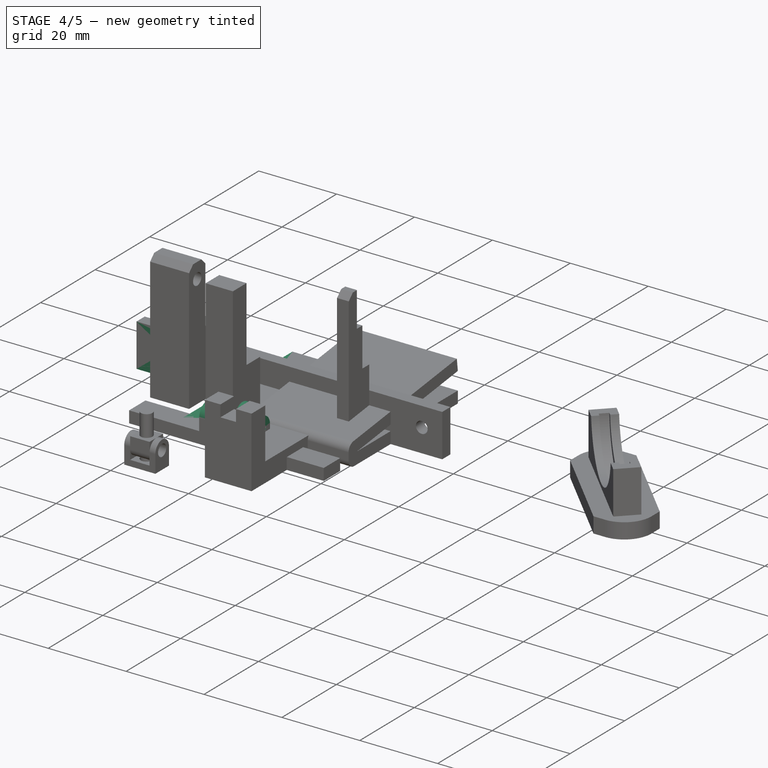
[diagram: stage 4 of 5 — iso view after this stage's code; geometry added in this stage tinted green]
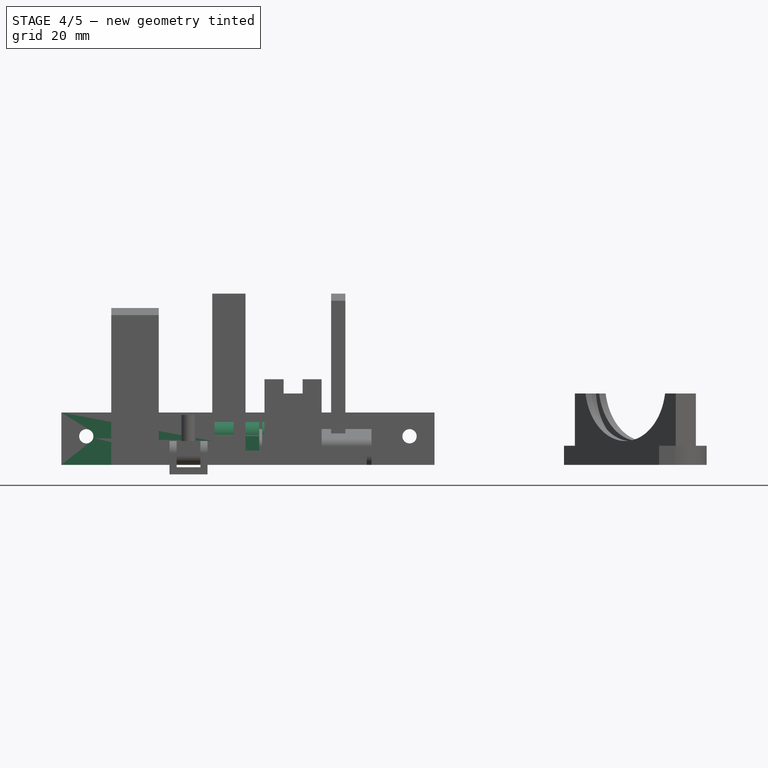
[diagram: stage 4 of 5 — front view after this stage's code; geometry added in this stage tinted green]
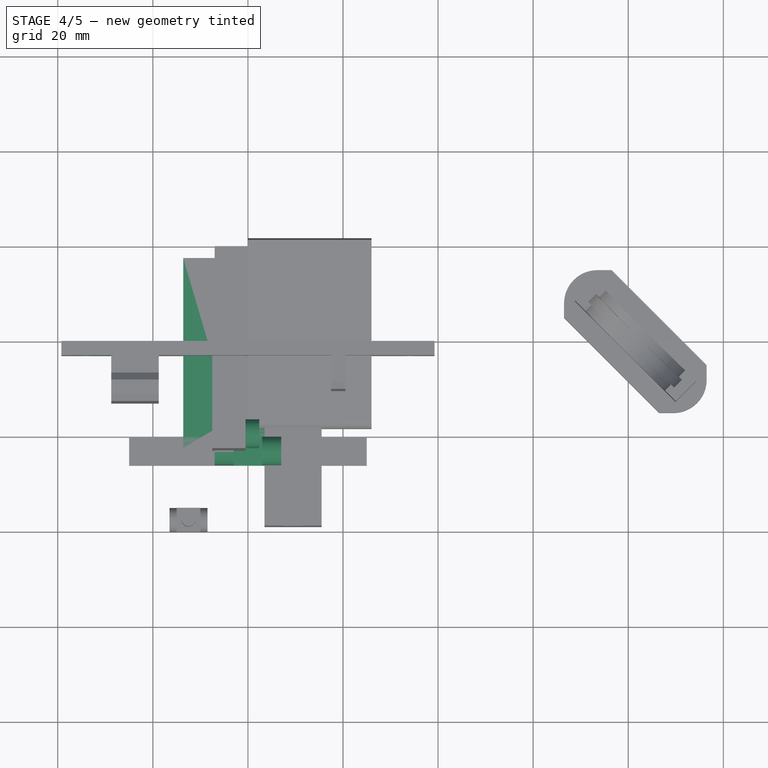
[diagram: stage 4 of 5 — top view after this stage's code; geometry added in this stage tinted green]
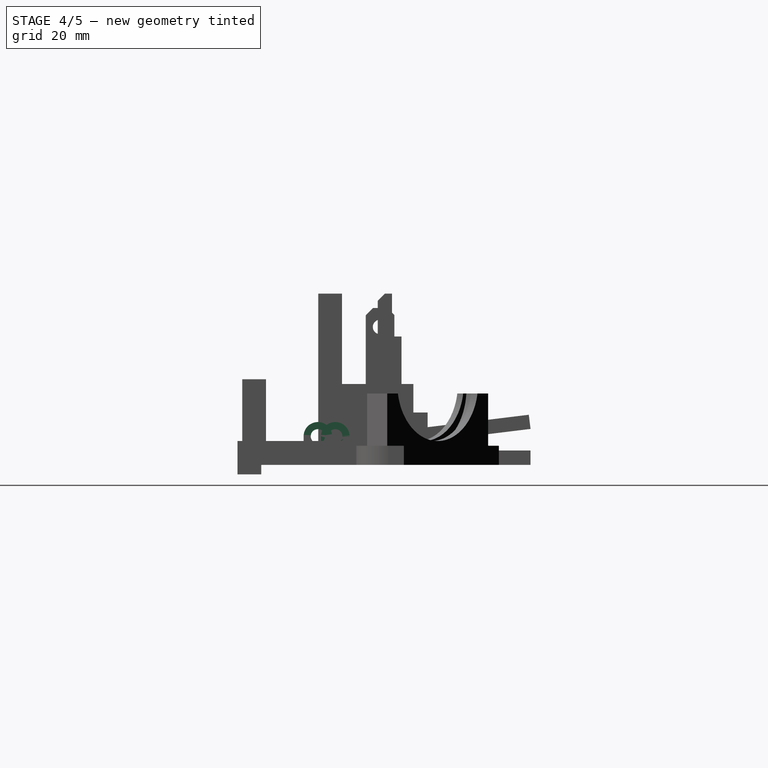
[diagram: stage 4 of 5 — right view after this stage's code; geometry added in this stage tinted green]
FEATURE [Sketcher::SketchObject] Sketch  label="MainBase001"
  FullyConstrained = true
  MapMode = 5
  Placement = pos=(0,0,0) rot=(1,0,0;1.5708rad)
  Support = -> [XZ_Plane]
  expr: Constraints[10] = 78.5 / 2
  sketch-geometry (4):
    g0: LineSegment StartX=-39.25 StartY=11 StartZ=0 EndX=39.25 EndY=11 EndZ=0
    g1: LineSegment StartX=39.25 StartY=11 StartZ=0 EndX=39.25 EndY=0 EndZ=0
    g2: LineSegment StartX=39.25 StartY=0 StartZ=0 EndX=-39.25 EndY=0 EndZ=0
    g3: LineSegment StartX=-39.25 StartY=0 StartZ=0 EndX=-39.25 EndY=11 EndZ=0
  constraints (12):
    c: Coincident(g0,g1)
    c: Coincident(g1,g2)
    c: Coincident(g2,g3)
    c: Coincident(g3,g0)
    c: Horizontal(g0)
    c: Horizontal(g2)
    c: Vertical(g1)
    c: Vertical(g3)
    c: PointOnObject(g1,g-1)
    c: DistanceX(g2,g2) = 78.5
    c: DistanceX(g-1,g0) = 39.25
    c: DistanceY(g3,g3) = 11
FEATURE [PartDesign::Pad] Pad  label="MainBase"
  Direction = (0,-1,-2e-16)
  Length = 3
  Length2 = 10
  Placement = pos=(0,0,0) rot=(1,0,0;1.5708rad)
  Profile = -> Sketch
  ReferenceAxis = -> Sketch [N_Axis]
  Type = 0
FEATURE [Sketcher::SketchObject] Sketch001  label="Holes001"
  FullyConstrained = true
  MapMode = 5
  Placement = pos=(0,-3,0) rot=(1,0,0;1.5708rad)
  Support = -> [Pad]
  expr: Constraints[5] = 68 / 2
  sketch-geometry (2):
    g0: Circle CenterX=-34 CenterY=6 CenterZ=0 NormalX=0 NormalY=0 NormalZ=1 AngleXU=0 Radius=1.5
    g1: Circle CenterX=34 CenterY=6 CenterZ=0 NormalX=0 NormalY=0 NormalZ=1 AngleXU=0 Radius=1.5
  constraints (6):
    c: Equal(g1,g0)
    c: Diameter(g1) = 3
    c: DistanceY(g-1,g0) = 6
    c: DistanceY(g-1,g1) = 6
    c: DistanceX(g0,g1) = 68
    c: DistanceX(g0,g-1) = 34
FEATURE [PartDesign::Pocket] Pocket  label="Holes"
  BaseFeature = -> Pad
  Direction = (0,1,2e-16)
  Length = 5
  Length2 = 5
  Placement = pos=(0,0,0) rot=(1,0,0;1.5708rad)
  Profile = -> Sketch001
  ReferenceAxis = -> Sketch001 [N_Axis]
  Type = 1
FEATURE [Sketcher::SketchObject] Sketch002  label="Extension001"
  FullyConstrained = true
  MapMode = 5
  Placement = pos=(0,-3,0) rot=(1,0,0;1.5708rad)
  Support = -> [Pocket]
  expr: Constraints[11] = 50 - 79 / 2 - 7
  sketch-geometry (4):
    g0: LineSegment StartX=3.5 StartY=5 StartZ=0 EndX=15.5 EndY=5 EndZ=0
    g1: LineSegment StartX=15.5 StartY=5 StartZ=0 EndX=15.5 EndY=0 EndZ=0
    g2: LineSegment StartX=15.5 StartY=0 StartZ=0 EndX=3.5 EndY=0 EndZ=0
    g3: LineSegment StartX=3.5 StartY=0 StartZ=0 EndX=3.5 EndY=5 EndZ=0
  constraints (12):
    c: Coincident(g0,g1)
    c: Coincident(g1,g2)
    c: Coincident(g3,g0)
    c: Horizontal(g0)
    c: Horizontal(g2)
    c: Vertical(g1)
    c: Vertical(g3)
    c: PointOnObject(g1,g-1)
    c: DistanceX(g0,g0) = 12
    c: DistanceY(g1,g1) = 5
    c: Coincident(g2,g3)
    c: DistanceX(g-1,g2) = 3.5
FEATURE [PartDesign::Pad] Pad001  label="Extension"
  BaseFeature = -> Pocket
  Direction = (0,-1,2e-16)
  Length = 36
  Length2 = 10
  Placement = pos=(0,0,0) rot=(1,0,0;1.5708rad)
  Profile = -> Sketch002
  ReferenceAxis = -> Sketch002 [N_Axis]
  Type = 0
FEATURE [Sketcher::SketchObject] Sketch003  label="ExtensionUp001"
  ExternalGeometry = -> [Pad001]
  FullyConstrained = true
  MapMode = 5
  Placement = pos=(0,1.7e-15,5) rot=(0,0,1;3.14159rad)
  Support = -> [Pad001]
  sketch-geometry (4):
    g0: LineSegment StartX=-15.5 StartY=39 StartZ=0 EndX=-3.5 EndY=39 EndZ=0
    g1: LineSegment StartX=-3.5 StartY=39 StartZ=0 EndX=-3.5 EndY=34 EndZ=0
    g2: LineSegment StartX=-3.5 StartY=34 StartZ=0 EndX=-15.5 EndY=34 EndZ=0
    g3: LineSegment StartX=-15.5 StartY=34 StartZ=0 EndX=-15.5 EndY=39 EndZ=0
  constraints (12):
    c: Coincident(g0,g1)
    c: Coincident(g1,g2)
    c: Coincident(g2,g3)
    c: Coincident(g3,g0)
    c: Horizontal(g0)
    c: Horizontal(g2)
    c: Vertical(g1)
    c: Vertical(g3)
    c: Coincident(g0,g-3)
    c: DistanceX(g-3,g-3) = 12
    c: DistanceX(g0,g0) = 12
    c: DistanceY(g1,g1) = 5
FEATURE [PartDesign::Pad] Pad002  label="ExtensionUp"
  BaseFeature = -> Pad001
  Direction = (0,3e-16,1)
  Length = 13
  Length2 = 10
  Placement = pos=(0,0,0) rot=(1,0,0;1.5708rad)
  Profile = -> Sketch003
  ReferenceAxis = -> Sketch003 [N_Axis]
  Type = 0
FEATURE [Sketcher::SketchObject] Sketch004  label="Fixer001"
  ExternalGeometry = -> [Pad002]
  FullyConstrained = true
  MapMode = 5
  Placement = pos=(0,1.05e-14,18) rot=(0,0,1;3.14159rad)
  Support = -> [Pad002]
  sketch-geometry (4):
    g0: LineSegment StartX=-11.5 StartY=39 StartZ=0 EndX=-7.5 EndY=39 EndZ=0
    g1: LineSegment StartX=-7.5 StartY=39 StartZ=0 EndX=-7.5 EndY=34 EndZ=0
    g2: LineSegment StartX=-7.5 StartY=34 StartZ=0 EndX=-11.5 EndY=34 EndZ=0
    g3: LineSegment StartX=-11.5 StartY=34 StartZ=0 EndX=-11.5 EndY=39 EndZ=0
  constraints (13):
    c: Coincident(g0,g1)
    c: Coincident(g1,g2)
    c: Coincident(g2,g3)
    c: Coincident(g3,g0)
    c: Horizontal(g0)
    c: Horizontal(g2)
    c: Vertical(g1)
    c: Vertical(g3)
    c: PointOnObject(g0,g-3)
    c: DistanceX(g-3,g-3) = 12
    c: DistanceX(g0,g0) = 4
    c: DistanceX(g-3,g0) = 4
    c: DistanceY(g1,g1) = 5
FEATURE [PartDesign::Pocket] Pocket001  label="Fixer"
  BaseFeature = -> Pad002
  Direction = (0,-5e-16,-1)
  Length = 3
  Length2 = 5
  Placement = pos=(0,0,0) rot=(1,0,0;1.5708rad)
  Profile = -> Sketch004
  ReferenceAxis = -> Sketch004 [N_Axis]
  Type = 0
FEATURE [Sketcher::SketchObject] Sketch009  label="DMDExt001"
  FullyConstrained = true
  MapMode = 5
  Placement = pos=(0,-3,0) rot=(1,0,0;1.5708rad)
  Support = -> [Pocket001]
  sketch-geometry (4):
    g0: LineSegment StartX=-0.5 StartY=0 StartZ=0 EndX=-7.5 EndY=0 EndZ=0
    g1: LineSegment StartX=-7.5 StartY=0 StartZ=0 EndX=-7.5 EndY=5 EndZ=0
    g2: LineSegment StartX=-7.5 StartY=5 StartZ=0 EndX=-0.5 EndY=5 EndZ=0
    g3: LineSegment StartX=-0.5 StartY=5 StartZ=0 EndX=-0.5 EndY=0 EndZ=0
  constraints (12):
    c: Coincident(g0,g1)
    c: Coincident(g1,g2)
    c: Coincident(g2,g3)
    c: Coincident(g3,g0)
    c: Horizontal(g0)
    c: Horizontal(g2)
    c: Vertical(g1)
    c: Vertical(g3)
    c: PointOnObject(g0,g-1)
    c: DistanceX(g0,g-1) = 0.5
    c: DistanceY(g3,g3) = 5
    c: DistanceX(g2,g2) = 7
FEATURE [PartDesign::Pad] Pad005  label="DMDExt01"
  BaseFeature = -> Pocket001
  Direction = (0,-1,-2e-16)
  Length = 20
  Length2 = 10
  Placement = pos=(0,0,0) rot=(1,0,0;1.5708rad)
  Profile = -> Sketch009
  ReferenceAxis = -> Sketch009 [N_Axis]
  Type = 0
FEATURE [Sketcher::SketchObject] Sketch010  label="DMDExtUp001"
  ExternalGeometry = -> [Pad005]
  FullyConstrained = true
  MapMode = 5
  Placement = pos=(0,-5e-16,5) rot=(0,0,1;3.14159rad)
  Support = -> [Pad005]
  sketch-geometry (4):
    g0: LineSegment StartX=7.5 StartY=23 StartZ=0 EndX=0.5 EndY=23 EndZ=0
    g1: LineSegment StartX=0.5 StartY=23 StartZ=0 EndX=0.5 EndY=18 EndZ=0
    g2: LineSegment StartX=0.5 StartY=18 StartZ=0 EndX=7.5 EndY=18 EndZ=0
    g3: LineSegment StartX=7.5 StartY=18 StartZ=0 EndX=7.5 EndY=23 EndZ=0
  constraints (11):
    c: Coincident(g0,g1)
    c: Coincident(g1,g2)
    c: Coincident(g2,g3)
    c: Coincident(g3,g0)
    c: Horizontal(g0)
    c: Horizontal(g2)
    c: Vertical(g1)
    c: Vertical(g3)
    c: Coincident(g0,g-3)
    c: DistanceY(g3,g3) = 5
    c: DistanceX(g0,g0) = 7
FEATURE [PartDesign::Pad] Pad006  label="DMDExtUp01"
  BaseFeature = -> Pad005
  Direction = (0,-1e-16,1)
  Length = 31
  Length2 = 10
  Placement = pos=(0,0,0) rot=(1,0,0;1.5708rad)
  Profile = -> Sketch010
  ReferenceAxis = -> Sketch010 [N_Axis]
  Type = 0
FEATURE [PartDesign::Body] Body  label="DichroicHolder"
  Group = -> [Sketch,Pad,Sketch001,Pocket,Sketch002,Pad001,Sketch003,Pad002,Sketch004,Pocket001,Sketch009,Pad005,Sketch010,Pad006,Sketch011,Pad007,Sketch012,Pad008,Sketch013,Pad009,Sketch014,Pad010,Sketch015,Pocket004,Sketch016,Pocket005,Sketch017,Pocket006,Chamfer001]
  Origin = -> Origin
  Tip = -> Chamfer001
FEATURE [Sketcher::SketchObject] Sketch018
  FullyConstrained = false
  MapMode = 5
  Support = -> [XY_Plane002]
  sketch-geometry (4):
    g0: LineSegment StartX=-13.616 StartY=17.5783 StartZ=0 EndX=12.384 EndY=17.5783 EndZ=0
    g1: LineSegment StartX=12.384 StartY=17.5783 StartZ=0 EndX=12.384 EndY=-22.4217 EndZ=0
    g2: LineSegment StartX=12.384 StartY=-22.4217 StartZ=0 EndX=-13.616 EndY=-22.4217 EndZ=0
    g3: LineSegment StartX=-13.616 StartY=-22.4217 StartZ=0 EndX=-13.616 EndY=17.5783 EndZ=0
  constraints (10):
    c: Coincident(g0,g1)
    c: Coincident(g1,g2)
    c: Coincident(g2,g3)
    c: Coincident(g3,g0)
    c: Horizontal(g0)
    c: Horizontal(g2)
    c: Vertical(g1)
    c: Vertical(g3)
    c: DistanceY(g1,g1) = 40
    c: DistanceX(g0,g0) = 26
FEATURE [PartDesign::Pad] Pad011
  Direction = (0,0,1)
  Length = 3
  Length2 = 10
  Profile = -> Sketch018
  ReferenceAxis = -> Sketch018 [N_Axis]
  Type = 0
FEATURE [Sketcher::SketchObject] Sketch019
  ExternalGeometry = -> [Pad011]
  FullyConstrained = true
  MapMode = 5
  Placement = pos=(0,0,3) rot=(0,0,1;0rad)
  Support = -> [Pad011]
  sketch-geometry (4):
    g0: LineSegment StartX=2.38396 StartY=-22.4217 StartZ=0 EndX=-3.61604 EndY=-22.4217 EndZ=0
    g1: LineSegment StartX=-3.61604 StartY=-22.4217 StartZ=0 EndX=-3.61604 EndY=-16.4217 EndZ=0
    g2: LineSegment StartX=-3.61604 StartY=-16.4217 StartZ=0 EndX=2.38396 EndY=-16.4217 EndZ=0
    g3: LineSegment StartX=2.38396 StartY=-16.4217 StartZ=0 EndX=2.38396 EndY=-22.4217 EndZ=0
  constraints (13):
    c: Coincident(g0,g1)
    c: Coincident(g1,g2)
    c: Coincident(g2,g3)
    c: Coincident(g3,g0)
    c: Horizontal(g0)
    c: Horizontal(g2)
    c: Vertical(g1)
    c: Vertical(g3)
    c: PointOnObject(g0,g-3)
    c: DistanceX(g2,g2) = 6
    c: DistanceY(g3,g3) = 6
    c: DistanceX(g0,g-3) = 10
    c: DistanceX(g-3,g-3) = 26
FEATURE [PartDesign::Pad] Pad012
  BaseFeature = -> Pad011
  Direction = (0,0,1)
  Length = 3
  Length2 = 10
  Profile = -> Sketch019
  ReferenceAxis = -> Sketch019 [N_Axis]
  Type = 0
FEATURE [Sketcher::SketchObject] Sketch020
  ExternalGeometry = -> [Pad012]
  FullyConstrained = true
  MapMode = 5
  Placement = pos=(2.38396,0,0) rot=(0.57735,0.57735,0.57735;2.0944rad)
  Support = -> [Pad012]
  sketch-geometry (2):
    g0: ArcOfCircle CenterX=-19.4217 CenterY=6 CenterZ=0 NormalX=0 NormalY=0 NormalZ=1 AngleXU=0 Radius=3 StartAngle=3e-16 EndAngle=3.14159
    g1: LineSegment StartX=-22.4217 StartY=6 StartZ=0 EndX=-16.4217 EndY=6 EndZ=0
  constraints (5):
    c: PointOnObject(g0,g-3)
    c: Coincident(g0,g-3)
    c: Coincident(g0,g-3)
    c: Coincident(g1,g0)
    c: Coincident(g1,g0)
FEATURE [PartDesign::Pad] Pad013
  BaseFeature = -> Pad012
  Direction = (1,0,0)
  Length = 6
  Length2 = 10
  Profile = -> Sketch020
  ReferenceAxis = -> Sketch020 [N_Axis]
  Reversed = true
  Type = 0
FEATURE [Sketcher::SketchObject] Sketch021
  ExternalGeometry = -> [Pad013]
  FullyConstrained = true
  MapMode = 5
  Placement = pos=(2.38396,0,0) rot=(0.57735,0.57735,0.57735;2.0944rad)
  Support = -> [Pad013]
  sketch-geometry (1):
    g0: Circle CenterX=-19.4217 CenterY=6 CenterZ=0 NormalX=0 NormalY=0 NormalZ=1 AngleXU=0 Radius=1.5
  constraints (3):
    c: PointOnObject(g0,g-3)
    c: DistanceX(g0,g-3) = 3
    c: Diameter(g0) = 3
FEATURE [PartDesign::Pocket] Pocket007
  BaseFeature = -> Pad013
  Direction = (-1,0,0)
  Length = 5
  Length2 = 5
  Profile = -> Sketch021
  ReferenceAxis = -> Sketch021 [N_Axis]
  Type = 1
FEATURE [Sketcher::SketchObject] Sketch024
  ExternalGeometry = -> [Pad015]
  FullyConstrained = true
  MapMode = 5
  Placement = pos=(7,0,0) rot=(0.57735,0.57735,0.57735;2.0944rad)
  Support = -> [Pad015]
  sketch-geometry (2):
    g0: ArcOfCircle CenterX=-23.0806 CenterY=6 CenterZ=0 NormalX=0 NormalY=0 NormalZ=1 AngleXU=0 Radius=3 StartAngle=9e-16 EndAngle=3.14159
    g1: LineSegment StartX=-26.0806 StartY=6 StartZ=0 EndX=-20.0806 EndY=6 EndZ=0
  constraints (5):
    c: PointOnObject(g0,g-3)
    c: Coincident(g0,g-3)
    c: Coincident(g0,g-3)
    c: Coincident(g1,g0)
    c: Coincident(g1,g0)
FEATURE [PartDesign::Pad] Pad016
  BaseFeature = -> Pad015
  Direction = (1,0,0)
  Length = 14
  Length2 = 10
  Profile = -> Sketch024
  ReferenceAxis = -> Sketch024 [N_Axis]
  Reversed = true
  Type = 0
FEATURE [Sketcher::SketchObject] Sketch025
  ExternalGeometry = -> [Pad016]
  FullyConstrained = true
  MapMode = 5
  Placement = pos=(7,0,0) rot=(0.57735,0.57735,0.57735;2.0944rad)
  Support = -> [Pad016]
  sketch-geometry (1):
    g0: Circle CenterX=-23.0806 CenterY=6 CenterZ=0 NormalX=0 NormalY=0 NormalZ=1 AngleXU=0 Radius=1.5
  constraints (3):
    c: PointOnObject(g0,g-3)
    c: DistanceX(g0,g-3) = 3
    c: Diameter(g0) = 3
FEATURE [PartDesign::Pocket] Pocket008
  BaseFeature = -> Pad016
  Direction = (-1,0,0)
  Length = 5
  Length2 = 5
  Profile = -> Sketch025
  ReferenceAxis = -> Sketch025 [N_Axis]
  Type = 1
FEATURE [Sketcher::SketchObject] Sketch026
  ExternalGeometry = -> [Pocket008]
  FullyConstrained = false
  MapMode = 5
  Placement = pos=(0,-26.0806,0) rot=(1,0,0;1.5708rad)
  Support = -> [Pocket008]
  sketch-geometry (4):
    g0: LineSegment StartX=-3 StartY=12.1283 StartZ=0 EndX=3 EndY=12.1283 EndZ=0
    g1: LineSegment StartX=3 StartY=12.1283 StartZ=0 EndX=3 EndY=3 EndZ=0
    g2: LineSegment StartX=3 StartY=3 StartZ=0 EndX=-3 EndY=3 EndZ=0
    g3: LineSegment StartX=-3 StartY=3 StartZ=0 EndX=-3 EndY=12.1283 EndZ=0
  constraints (11):
    c: Coincident(g0,g1)
    c: Coincident(g1,g2)
    c: Coincident(g2,g3)
    c: Coincident(g3,g0)
    c: Horizontal(g0)
    c: Horizontal(g2)
    c: Vertical(g1)
    c: Vertical(g3)
    c: PointOnObject(g1,g-3)
    c: DistanceX(g0,g0) = 6
    c: DistanceX(g-1,g1) = 3
FEATURE [PartDesign::Pocket] Pocket009
  BaseFeature = -> Pocket008
  Direction = (0,1,-2e-16)
  Length = 6
  Length2 = 5
  Profile = -> Sketch026
  ReferenceAxis = -> Sketch026 [N_Axis]
  Type = 0
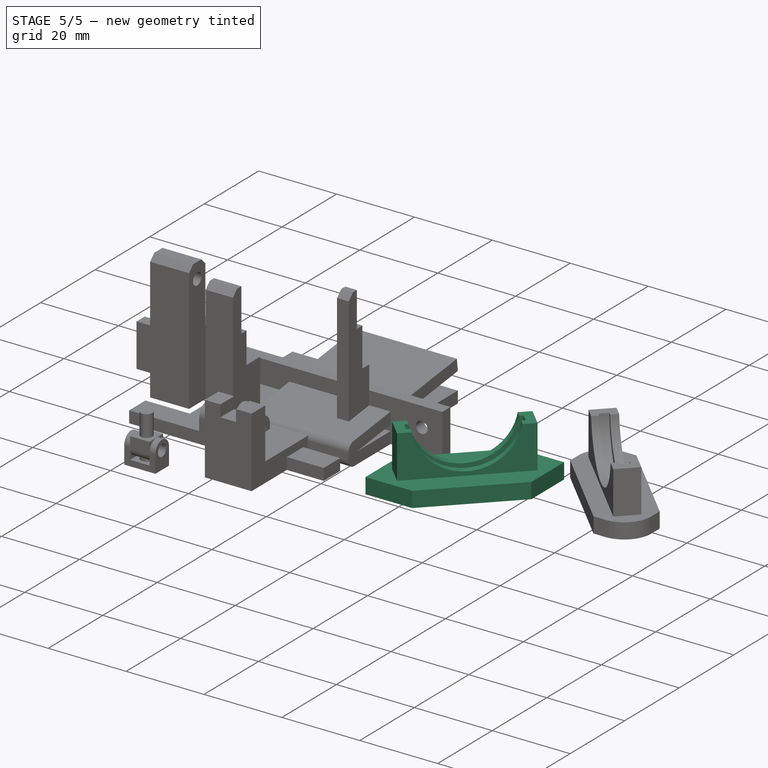
[diagram: stage 5 of 5 — iso view after this stage's code; geometry added in this stage tinted green]
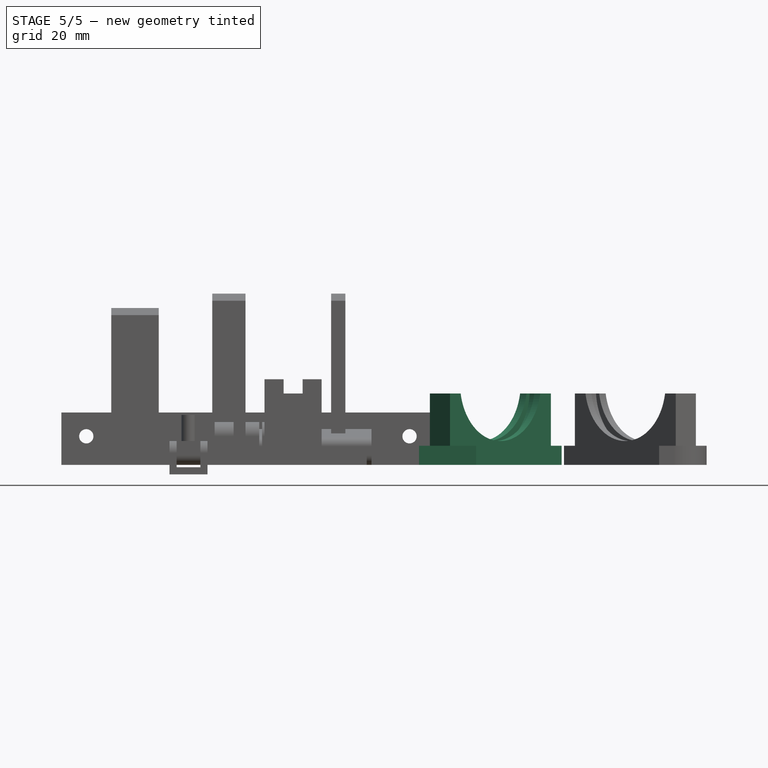
[diagram: stage 5 of 5 — front view after this stage's code; geometry added in this stage tinted green]
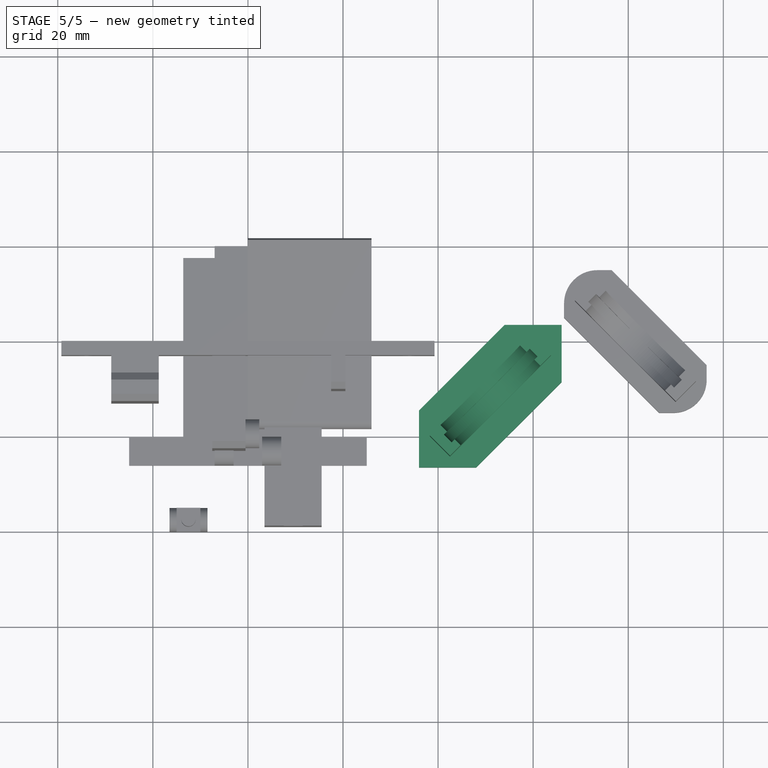
[diagram: stage 5 of 5 — top view after this stage's code; geometry added in this stage tinted green]
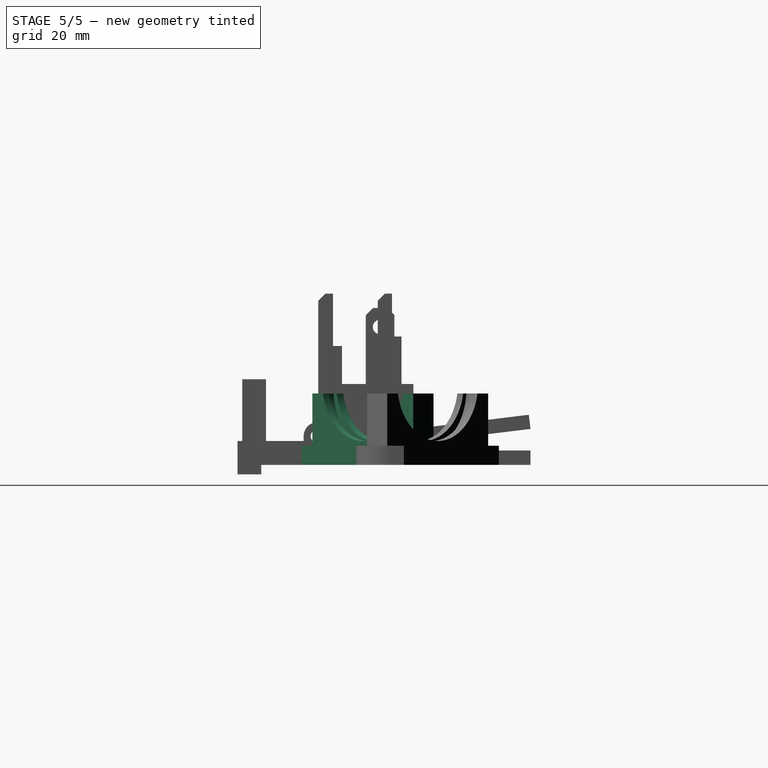
[diagram: stage 5 of 5 — right view after this stage's code; geometry added in this stage tinted green]
FEATURE [Part::Cylinder] Cylinder
  Angle = 360
  AttacherType = Attacher::AttachEngine3D
  FirstAngle = 0
  Height = 2.3
  Placement = pos=(-0.75,0.75,16) rot=(0.707107,0.707107,0;1.5708rad)
  Radius = 12.8
  SecondAngle = 0
FEATURE [Sketcher::SketchObject] Sketch005  label="Dichroic-Holder-Main001"
  FullyConstrained = true
  MapMode = 5
  Support = -> [XY_Plane001]
  sketch-geometry (4):
    g0: LineSegment StartX=-15 StartY=15 StartZ=0 EndX=15 EndY=15 EndZ=0
    g1: LineSegment StartX=15 StartY=15 StartZ=0 EndX=15 EndY=-15 EndZ=0
    g2: LineSegment StartX=15 StartY=-15 StartZ=0 EndX=-15 EndY=-15 EndZ=0
    g3: LineSegment StartX=-15 StartY=-15 StartZ=0 EndX=-15 EndY=15 EndZ=0
  constraints (11):
    c: Coincident(g0,g1)
    c: Coincident(g1,g2)
    c: Coincident(g2,g3)
    c: Coincident(g3,g0)
    c: Horizontal(g0)
    c: Horizontal(g2)
    c: Vertical(g1)
    c: Vertical(g3)
    c: Symmetric(g1,g0,g-1)
    c: DistanceX(g0,g0) = 30
    c: DistanceY(g1,g1) = 30
FEATURE [PartDesign::Pad] Pad003  label="Dichroic-Holder-Main"
  Direction = (0,0,1)
  Length = 4
  Length2 = 10
  Profile = -> Sketch005
  ReferenceAxis = -> Sketch005 [N_Axis]
  Type = 0
FEATURE [Sketcher::SketchObject] Sketch006  label="Dichroic-Holder-Ext001"
  FullyConstrained = true
  MapMode = 5
  Placement = pos=(0,0,4) rot=(0,0,1;0rad)
  Support = -> [Pad003]
  sketch-geometry (4):
    g0: LineSegment StartX=-12.7279 StartY=-8.48528 StartZ=0 EndX=-8.48528 EndY=-12.7279 EndZ=0
    g1: LineSegment StartX=-8.48528 StartY=-12.7279 StartZ=0 EndX=12.7279 EndY=8.48528 EndZ=0
    g2: LineSegment StartX=12.7279 StartY=8.48528 StartZ=0 EndX=8.48528 EndY=12.7279 EndZ=0
    g3: LineSegment StartX=8.48528 StartY=12.7279 StartZ=0 EndX=-12.7279 EndY=-8.48528 EndZ=0
  constraints (11):
    c: Coincident(g0,g1)
    c: Coincident(g1,g2)
    c: Coincident(g2,g3)
    c: Coincident(g3,g0)
    c: Parallel(g3,g1)
    c: Parallel(g2,g0)
    c: Angle(g1) = 0.785398
    c: Angle(g2,g1) = 1.5708
    c: Symmetric(g2,g0,g-1)
    c: Distance(g2) = 6
    c: Distance(g1) = 30
FEATURE [PartDesign::Pad] Pad004  label="Dichroic-Holder-Ext"
  BaseFeature = -> Pad003
  Direction = (0,0,1)
  Length = 11
  Length2 = 10
  Profile = -> Sketch006
  ReferenceAxis = -> Sketch006 [N_Axis]
  Type = 0
FEATURE [Sketcher::SketchObject] Sketch007  label="Dichroic-Hole001"
  FullyConstrained = true
  MapMode = 5
  Placement = pos=(2.12132,-2.12132,0) rot=(0.862856,0.357407,0.357407;1.71777rad)
  Support = -> [Pad004]
  sketch-geometry (2):
    g0: ArcOfCircle CenterX=0 CenterY=17 CenterZ=0 NormalX=0 NormalY=0 NormalZ=1 AngleXU=0 Radius=12 StartAngle=3.14159 EndAngle=6.28319
    g1: LineSegment StartX=-12 StartY=17 StartZ=0 EndX=12 EndY=17 EndZ=0
  constraints (7):
    c: PointOnObject(g0,g-2)
    c: Radius(g0) = 12
    c: Angle(g0) = 3.14159
    c: Coincident(g1,g0)
    c: Coincident(g1,g0)
    c: Horizontal(g1)
    c: DistanceY(g-1,g0) = 17
FEATURE [PartDesign::Pocket] Pocket002  label="Dichroic-Hole"
  BaseFeature = -> Pad004
  Direction = (-0.707107,0.707107,0)
  Length = 5
  Length2 = 5
  Profile = -> Sketch007
  ReferenceAxis = -> Sketch007 [N_Axis]
  Type = 1
FEATURE [Sketcher::SketchObject] Sketch008  label="Dichroic-Hole-Fixer001"
  FullyConstrained = true
  MapMode = 5
  Placement = pos=(0,0,0) rot=(1,0,0;3.14159rad)
  Support = -> [Pocket002]
  sketch-geometry (8):
    g0: LineSegment StartX=-6 StartY=2.5 StartZ=0 EndX=-2 EndY=2.5 EndZ=0
    g1: LineSegment StartX=-2 StartY=2.5 StartZ=0 EndX=-2 EndY=-2.5 EndZ=0
    g2: LineSegment StartX=-2 StartY=-2.5 StartZ=0 EndX=-6 EndY=-2.5 EndZ=0
    g3: LineSegment StartX=-6 StartY=-2.5 StartZ=0 EndX=-6 EndY=2.5 EndZ=0
    g4: LineSegment StartX=2 StartY=2.5 StartZ=0 EndX=6 EndY=2.5 EndZ=0
    g5: LineSegment StartX=6 StartY=2.5 StartZ=0 EndX=6 EndY=-2.5 EndZ=0
    g6: LineSegment StartX=6 StartY=-2.5 StartZ=0 EndX=2 EndY=-2.5 EndZ=0
    g7: LineSegment StartX=2 StartY=-2.5 StartZ=0 EndX=2 EndY=2.5 EndZ=0
  constraints (23):
    c: Coincident(g0,g1)
    c: Coincident(g1,g2)
    c: Coincident(g2,g3)
    c: Coincident(g3,g0)
    c: Horizontal(g0)
    c: Horizontal(g2)
    c: Vertical(g1)
    c: Vertical(g3)
    c: Coincident(g4,g5)
    c: Coincident(g5,g6)
    c: Coincident(g6,g7)
    c: Coincident(g7,g4)
    c: Horizontal(g4)
    c: Horizontal(g6)
    c: Vertical(g5)
    c: Vertical(g7)
    c: DistanceX(g0,g0) = 4
    c: DistanceX(g4,g4) = 4
    c: DistanceX(g0,g4) = 4
    c: Symmetric(g0,g6,g-1)
    c: DistanceY(g5,g5) = 5
    c: Equal(g1,g5)
    c: DistanceY(g1,g6) = 0
FEATURE [PartDesign::Pocket] Pocket003  label="Dichroic-Hole-Fixer"
  BaseFeature = -> Pocket002
  Direction = (0,0,1)
  Length = 2
  Length2 = 5
  Profile = -> Sketch008
  ReferenceAxis = -> Sketch008 [N_Axis]
  Type = 0
FEATURE [PartDesign::Chamfer] Chamfer
  Angle = 45
  Base = -> Pocket003 [Edge8,Edge1]
  BaseFeature = -> Pocket003
  ChamferType = 0
  FlipDirection = false
  Size = 18
  Size2 = 1
  SupportTransform = false
  UseAllEdges = false
FEATURE [PartDesign::Body] Body001  label="Dichroic-Holder-Temp"
  Group = -> [Sketch005,Pad003,Sketch006,Pad004,Sketch007,Pocket002,Sketch008,Pocket003,Chamfer]
  Origin = -> Origin001
  Tip = -> Chamfer
FEATURE [Part::Cut] Cut001  label="Dichroic-Holder"
  Base = -> Body001
  Placement = pos=(51,-11.5,0) rot=(0,0,1;0rad)
  Tool = -> Cylinder
FEATURE [Sketcher::SketchObject] Sketch011  label="DMDExt002"
  ExternalGeometry = -> [Pad006]
  FullyConstrained = true
  MapMode = 5
  Placement = pos=(0,-3,0) rot=(1,0,0;1.5708rad)
  Support = -> [Pad006]
  sketch-geometry (4):
    g0: LineSegment StartX=17.5 StartY=0 StartZ=0 EndX=20.5 EndY=0 EndZ=0
    g1: LineSegment StartX=20.5 StartY=0 StartZ=0 EndX=20.5 EndY=5 EndZ=0
    g2: LineSegment StartX=20.5 StartY=5 StartZ=0 EndX=17.5 EndY=5 EndZ=0
    g3: LineSegment StartX=17.5 StartY=5 StartZ=0 EndX=17.5 EndY=0 EndZ=0
  constraints (12):
    c: Coincident(g0,g1)
    c: Coincident(g1,g2)
    c: Coincident(g2,g3)
    c: Coincident(g3,g0)
    c: Horizontal(g0)
    c: Horizontal(g2)
    c: Vertical(g1)
    c: Vertical(g3)
    c: PointOnObject(g0,g-1)
    c: DistanceX(g-1,g0) = 17.5
    c: DistanceX(g2,g2) = 3
    c: DistanceY(g1,g1) = 5
FEATURE [PartDesign::Pad] Pad007  label="DMDExt02"
  BaseFeature = -> Pad006
  Direction = (0,-1,2e-16)
  Length = 7.5
  Length2 = 10
  Placement = pos=(0,0,0) rot=(1,0,0;1.5708rad)
  Profile = -> Sketch011
  ReferenceAxis = -> Sketch011 [N_Axis]
  Type = 0
FEATURE [Sketcher::SketchObject] Sketch012  label="DMDExtUp002"
  ExternalGeometry = -> [Pad007]
  FullyConstrained = true
  MapMode = 5
  Placement = pos=(0,1.7e-15,5) rot=(0,0,1;3.14159rad)
  Support = -> [Pad007]
  sketch-geometry (4):
    g0: LineSegment StartX=-20.5 StartY=10.5 StartZ=0 EndX=-17.5 EndY=10.5 EndZ=0
    g1: LineSegment StartX=-17.5 StartY=10.5 StartZ=0 EndX=-17.5 EndY=5.5 EndZ=0
    g2: LineSegment StartX=-17.5 StartY=5.5 StartZ=0 EndX=-20.5 EndY=5.5 EndZ=0
    g3: LineSegment StartX=-20.5 StartY=5.5 StartZ=0 EndX=-20.5 EndY=10.5 EndZ=0
  constraints (11):
    c: Coincident(g0,g1)
    c: Coincident(g1,g2)
    c: Coincident(g2,g3)
    c: Coincident(g3,g0)
    c: Horizontal(g0)
    c: Horizontal(g2)
    c: Vertical(g1)
    c: Vertical(g3)
    c: Coincident(g0,g-3)
    c: DistanceY(g1,g1) = 5
    c: DistanceX(g0,g0) = 3
FEATURE [PartDesign::Pad] Pad008  label="DMDExtUp02"
  BaseFeature = -> Pad007
  Direction = (0,3e-16,1)
  Length = 31
  Length2 = 10
  Placement = pos=(0,0,0) rot=(1,0,0;1.5708rad)
  Profile = -> Sketch012
  ReferenceAxis = -> Sketch012 [N_Axis]
  Type = 0
FEATURE [Sketcher::SketchObject] Sketch013  label="FibreExt001"
  FullyConstrained = false
  MapMode = 5
  Placement = pos=(0,-3,0) rot=(1,0,0;1.5708rad)
  Support = -> [Pad008]
  sketch-geometry (4):
    g0: LineSegment StartX=-18.7563 StartY=0 StartZ=0 EndX=-28.7563 EndY=0 EndZ=0
    g1: LineSegment StartX=-28.7563 StartY=0 StartZ=0 EndX=-28.7563 EndY=5 EndZ=0
    g2: LineSegment StartX=-28.7563 StartY=5 StartZ=0 EndX=-18.7563 EndY=5 EndZ=0
    g3: LineSegment StartX=-18.7563 StartY=5 StartZ=0 EndX=-18.7563 EndY=0 EndZ=0
  constraints (11):
    c: Coincident(g0,g1)
    c: Coincident(g1,g2)
    c: Coincident(g2,g3)
    c: Coincident(g3,g0)
    c: Horizontal(g0)
    c: Horizontal(g2)
    c: Vertical(g1)
    c: Vertical(g3)
    c: PointOnObject(g0,g-1)
    c: DistanceY(g3,g3) = 5
    c: DistanceX(g2,g2) = 10
FEATURE [PartDesign::Pad] Pad009  label="FibreExt"
  BaseFeature = -> Pad008
  Direction = (0,-1,4e-16)
  Length = 10
  Length2 = 10
  Placement = pos=(0,0,0) rot=(1,0,0;1.5708rad)
  Profile = -> Sketch013
  ReferenceAxis = -> Sketch013 [N_Axis]
  Type = 0
FEATURE [Sketcher::SketchObject] Sketch014  label="FibreExtUp001"
  ExternalGeometry = -> [Pad009]
  FullyConstrained = true
  MapMode = 5
  Placement = pos=(0,2.8e-15,5) rot=(0,0,1;3.14159rad)
  Support = -> [Pad009]
  sketch-geometry (4):
    g0: LineSegment StartX=18.7563 StartY=13 StartZ=0 EndX=28.7563 EndY=13 EndZ=0
    g1: LineSegment StartX=28.7563 StartY=13 StartZ=0 EndX=28.7563 EndY=7 EndZ=0
    g2: LineSegment StartX=28.7563 StartY=7 StartZ=0 EndX=18.7563 EndY=7 EndZ=0
    g3: LineSegment StartX=18.7563 StartY=7 StartZ=0 EndX=18.7563 EndY=13 EndZ=0
  constraints (11):
    c: Coincident(g0,g1)
    c: Coincident(g1,g2)
    c: Coincident(g2,g3)
    c: Coincident(g3,g0)
    c: Horizontal(g0)
    c: Horizontal(g2)
    c: Vertical(g1)
    c: Vertical(g3)
    c: Coincident(g0,g-3)
    c: DistanceY(g1,g1) = 6
    c: DistanceX(g0,g0) = 10
FEATURE [PartDesign::Pad] Pad010  label="FibreExtUp"
  BaseFeature = -> Pad009
  Direction = (0,6e-16,1)
  Length = 28
  Length2 = 10
  Placement = pos=(0,0,0) rot=(1,0,0;1.5708rad)
  Profile = -> Sketch014
  ReferenceAxis = -> Sketch014 [N_Axis]
  Type = 0
FEATURE [Sketcher::SketchObject] Sketch015  label="FibreHole001"
  ExternalGeometry = -> [Pad010]
  FullyConstrained = true
  MapMode = 5
  Placement = pos=(-18.7563,0,0) rot=(0.707107,0,0.707107;3.14159rad)
  Support = -> [Pad010]
  sketch-geometry (1):
    g0: Circle CenterX=29 CenterY=10 CenterZ=0 NormalX=0 NormalY=0 NormalZ=1 AngleXU=0 Radius=1.525
  constraints (4):
    c: Diameter(g0) = 3.05
    c: DistanceY(g-3,g-3) = 6
    c: DistanceX(g0,g-3) = 4
    c: DistanceY(g0,g-3) = 3
FEATURE [PartDesign::Pocket] Pocket004  label="FibreHole"
  BaseFeature = -> Pad010
  Direction = (-1,0,2e-16)
  Length = 5
  Length2 = 5
  Placement = pos=(0,0,0) rot=(1,0,0;1.5708rad)
  Profile = -> Sketch015
  ReferenceAxis = -> Sketch015 [N_Axis]
  Type = 1
FEATURE [Sketcher::SketchObject] Sketch016  label="DMDStand001"
  ExternalGeometry = -> [Pad006]
  FullyConstrained = true
  MapMode = 5
  Placement = pos=(0,1.5e-15,36) rot=(0,0,1;3.14159rad)
  Support = -> [Pad006]
  sketch-geometry (4):
    g0: LineSegment StartX=7.5 StartY=18 StartZ=0 EndX=0.5 EndY=18 EndZ=0
    g1: LineSegment StartX=0.5 StartY=18 StartZ=0 EndX=0.5 EndY=19.9 EndZ=0
    g2: LineSegment StartX=0.5 StartY=19.9 StartZ=0 EndX=7.5 EndY=19.9 EndZ=0
    g3: LineSegment StartX=7.5 StartY=19.9 StartZ=0 EndX=7.5 EndY=18 EndZ=0
  constraints (11):
    c: Coincident(g0,g1)
    c: Coincident(g1,g2)
    c: Coincident(g2,g3)
    c: Coincident(g3,g0)
    c: Horizontal(g0)
    c: Horizontal(g2)
    c: Vertical(g1)
    c: Vertical(g3)
    c: Coincident(g0,g-3)
    c: DistanceY(g3,g3) = 1.9
    c: DistanceX(g2,g2) = 7
FEATURE [PartDesign::Pocket] Pocket005  label="DMDStand01"
  BaseFeature = -> Pocket004
  Direction = (0,1e-16,-1)
  Length = 11
  Length2 = 5
  Placement = pos=(0,0,0) rot=(1,0,0;1.5708rad)
  Profile = -> Sketch016
  ReferenceAxis = -> Sketch016 [N_Axis]
  Type = 0
FEATURE [Sketcher::SketchObject] Sketch017  label="DMDStand002"
  ExternalGeometry = -> [Pad008]
  FullyConstrained = true
  MapMode = 5
  Placement = pos=(0,2.1e-14,36) rot=(0,0,1;3.14159rad)
  Support = -> [Pad008]
  sketch-geometry (4):
    g0: LineSegment StartX=-17.5 StartY=5.5 StartZ=0 EndX=-20.5 EndY=5.5 EndZ=0
    g1: LineSegment StartX=-20.5 StartY=5.5 StartZ=0 EndX=-20.5 EndY=7.5 EndZ=0
    g2: LineSegment StartX=-20.5 StartY=7.5 StartZ=0 EndX=-17.5 EndY=7.5 EndZ=0
    g3: LineSegment StartX=-17.5 StartY=7.5 StartZ=0 EndX=-17.5 EndY=5.5 EndZ=0
  constraints (11):
    c: Coincident(g0,g1)
    c: Coincident(g1,g2)
    c: Coincident(g2,g3)
    c: Coincident(g3,g0)
    c: Horizontal(g0)
    c: Horizontal(g2)
    c: Vertical(g1)
    c: Vertical(g3)
    c: Coincident(g0,g-3)
    c: DistanceX(g2,g2) = 3
    c: DistanceY(g3,g3) = 2
FEATURE [PartDesign::Pocket] Pocket006  label="DMDStand02"
  BaseFeature = -> Pocket005
  Direction = (0,-5e-16,-1)
  Length = 9
  Length2 = 5
  Placement = pos=(0,0,0) rot=(1,0,0;1.5708rad)
  Profile = -> Sketch017
  ReferenceAxis = -> Sketch017 [N_Axis]
  Type = 0
FEATURE [PartDesign::Chamfer] Chamfer001
  Angle = 45
  Base = -> Pocket006 [Edge140,Edge121,Edge125,Edge139]
  BaseFeature = -> Pocket006
  ChamferType = 0
  FlipDirection = false
  Placement = pos=(0,0,0) rot=(1,0,0;1.5708rad)
  Size = 1.5
  Size2 = 1
  SupportTransform = false
  UseAllEdges = false
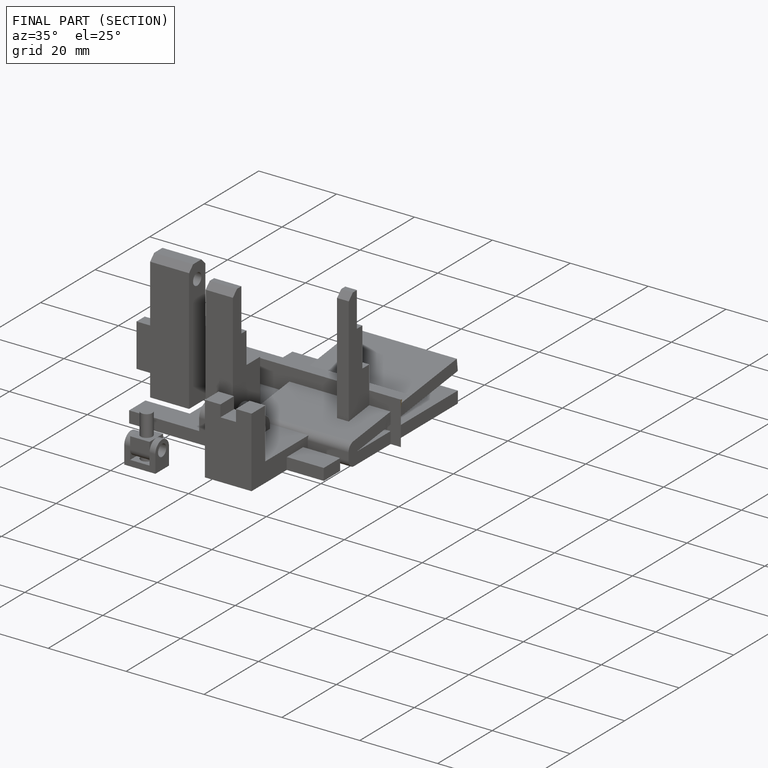
[diagram: finished part — half-section view (interior)]
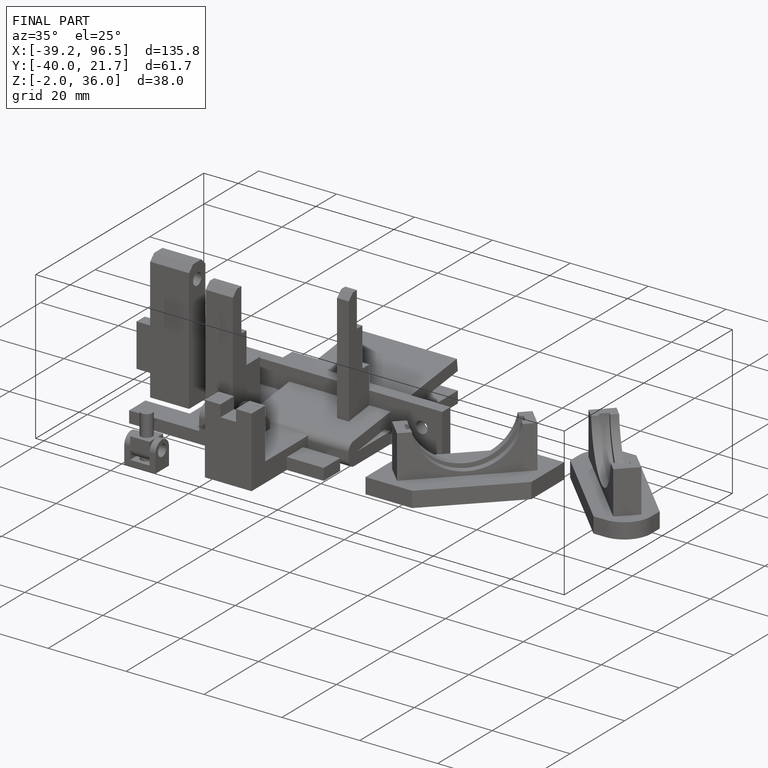
[diagram: finished part — iso view with bounding-box wireframe]
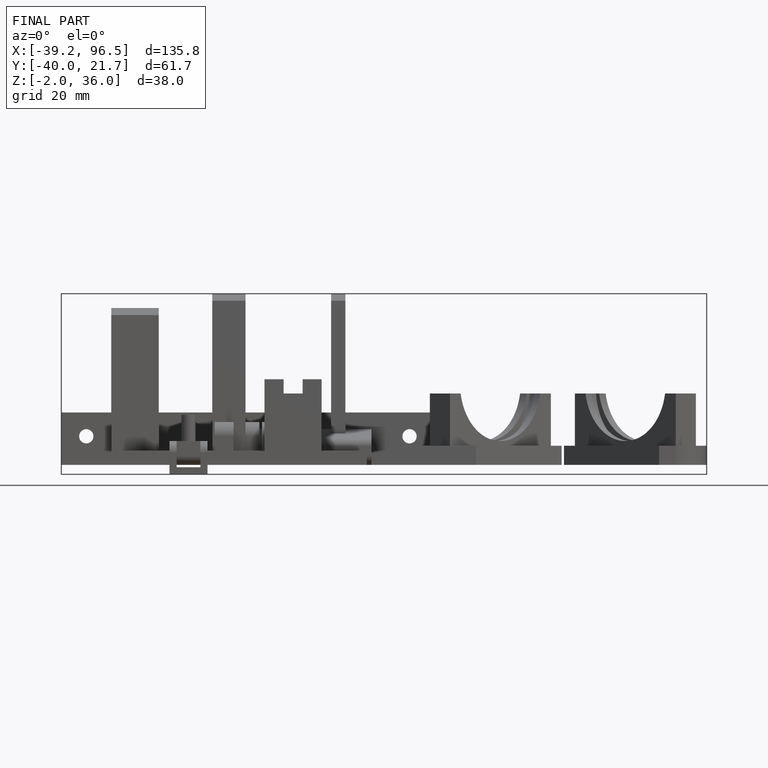
[diagram: finished part — front view with bounding-box wireframe]
